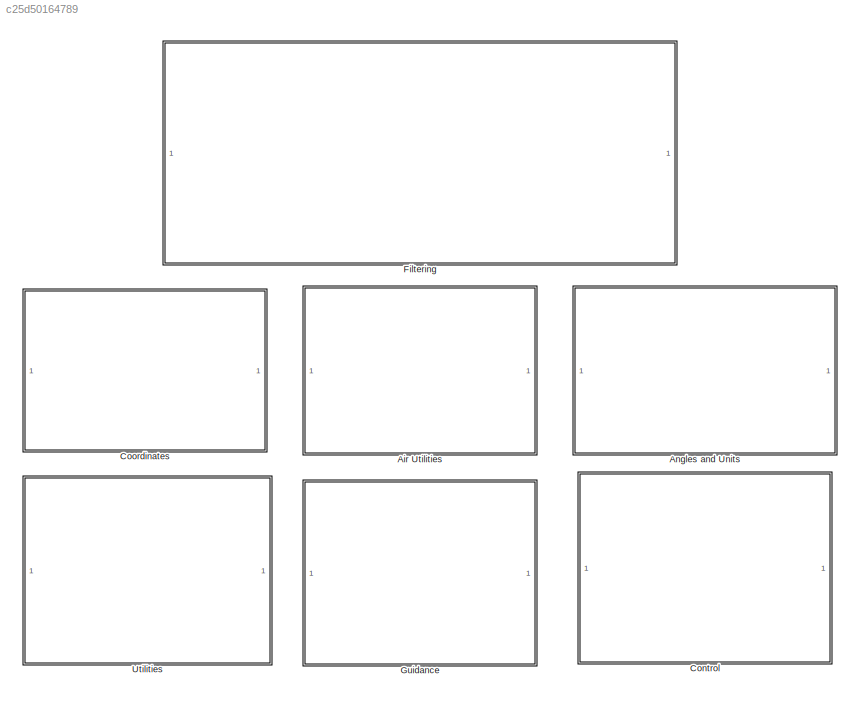
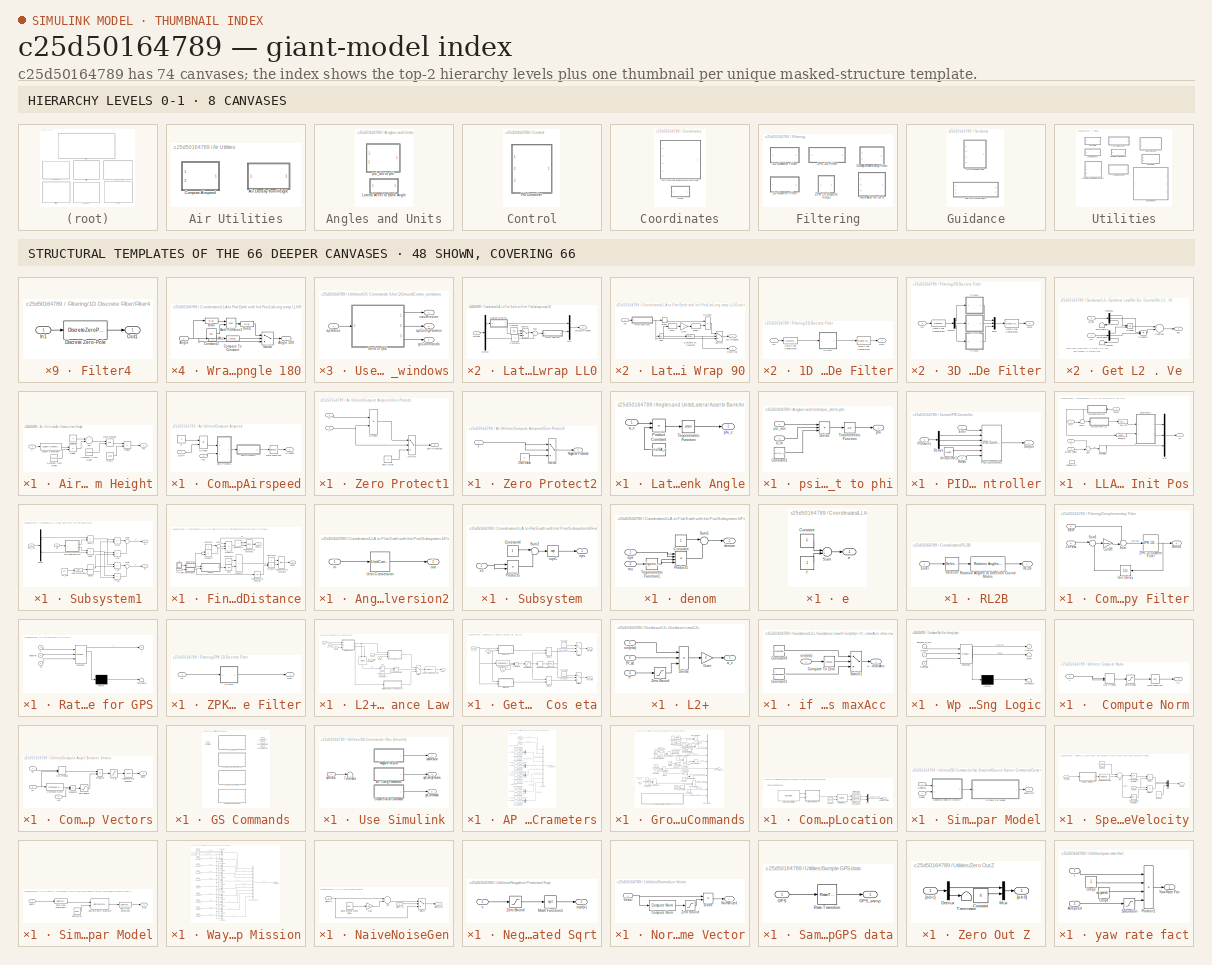
[diagram: thumbnail index - top-2 hierarchy levels (8 canvases) + 48 structural-template representatives of the remaining 66 canvases]
MODEL slx_c25d50164789
KIND library
CONFIG AbsTol = auto
CONFIG EnableMultiTasking = on
CONFIG FixedStep = auto
CONFIG MaxStep = auto
CONFIG MinStep = auto
CONFIG RelTol = 1e-3
CONFIG SampleTimeConstraint = Unconstrained
CONFIG Solver = ode45
CONFIG SolverName = ode45
CONFIG StartTime = 0.0
CONFIG StopTime = 10.0
BLOCK [SubSystem] Air Utilities
  Ports = []
  RequestExecContextInheritance = off
BLOCK [SubSystem] Air Utilities/Air Density from Height
  Ports = [1, 1]
  RequestExecContextInheritance = off
BLOCK [Sum] Air Utilities/Air Density from Height/Add
  InputSameDT = off
  Inputs = +-
  OutDataTypeStr = Inherit: Inherit via internal rule
  Ports = [2, 1]
  SaturateOnIntegerOverflow = off
BLOCK [Constant] Air Utilities/Air Density from Height/Constant
  AttributesFormatString = %<Value>
  OutDataTypeStr = single
BLOCK [Constant] Air Utilities/Air Density from Height/Constant 2 from Model
  AttributesFormatString = %<Value>
  OutDataTypeStr = single
  Value = 4.255876
BLOCK [Constant] Air Utilities/Air Density from Height/Constant from Model
  AttributesFormatString = %<Value>
  OutDataTypeStr = single
  Value = 145442
BLOCK [Product] Air Utilities/Air Density from Height/Divide
  InputSameDT = off
  Inputs = */
  OutDataTypeStr = Inherit: Inherit via internal rule
  Ports = [2, 1]
  RndMeth = Floor
  SampleTime = .01
  SaturateOnIntegerOverflow = off
BLOCK [Product] Air Utilities/Air Density from Height/Divide1
  InputSameDT = off
  OutDataTypeStr = Inherit: Inherit via internal rule
  Ports = [2, 1]
  RndMeth = Floor
  SaturateOnIntegerOverflow = off
BLOCK [Reference] Air Utilities/Air Density from Height/Length Conversion  REF=aerolibconvert2/Length Conversion
  Ports = [1, 1]
  SourceBlock = aerolibconvert2/Length Conversion
  SourceProductBaseCode = AE
  SourceProductName = Aerospace Blockset
  SourceType = Length Conversion
BLOCK [Math] Air Utilities/Air Density from Height/Math Function
  Operator = pow
  Ports = [2, 1]
BLOCK [Constant] Air Utilities/Air Density from Height/Rho_0
  AttributesFormatString = %<Value>
  Description = (Kg/m^3)
  OutDataTypeStr = single
  Value = 1.225
BLOCK [Inport] Air Utilities/Air Density from Height/h
  IconDisplay = Port number
  Unit = m
BLOCK [Outport] Air Utilities/Air Density from Height/rho 
  IconDisplay = Port number
  Unit = kg/m^3
BLOCK [SubSystem] Air Utilities/Compute Airspeed
  Ports = [2, 1]
  RequestExecContextInheritance = off
BLOCK [Outport] Air Utilities/Compute Airspeed/Airspeed 
  IconDisplay = Port number
  Unit = m/s
BLOCK [Product] Air Utilities/Compute Airspeed/Divide2
  InputSameDT = off
  OutDataTypeStr = Inherit: Inherit via internal rule
  Ports = [2, 1]
  RndMeth = Floor
  SampleTime = .01
  SaturateOnIntegerOverflow = off
BLOCK [Inport] Air Utilities/Compute Airspeed/Dyn P
  IconDisplay = Port number
  Unit = Pa
BLOCK [Sqrt] Air Utilities/Compute Airspeed/Math Function1
  AlgorithmType = Newton-Raphson
  Operator = signedSqrt
BLOCK [SubSystem] Air Utilities/Compute Airspeed/Zero Protect1
  Ports = [2, 1]
  RequestExecContextInheritance = off
BLOCK [Product] Air Utilities/Compute Airspeed/Zero Protect1/Divide2
  InputSameDT = off
  Inputs = */
  OutDataTypeStr = Inherit: Inherit via internal rule
  Ports = [2, 1]
  RndMeth = Floor
  SaturateOnIntegerOverflow = off
BLOCK [Switch] Air Utilities/Compute Airspeed/Zero Protect1/Switch
  Criteria = u2 ~= 0
  InputSameDT = off
  OutDataTypeStr = Inherit: Inherit via back propagation
  SaturateOnIntegerOverflow = off
  Threshold = 0.1
BLOCK [Outport] Air Utilities/Compute Airspeed/Zero Protect1/Zero Protected
  IconDisplay = Port number
BLOCK [Constant] Air Utilities/Compute Airspeed/Zero Protect1/Zero Value
  OutDataTypeStr = single
  Value = 0
BLOCK [Inport] Air Utilities/Compute Airspeed/Zero Protect1/x
  IconDisplay = Port number
BLOCK [Inport] Air Utilities/Compute Airspeed/Zero Protect1/÷
  IconDisplay = Port number
  Port = 2
BLOCK [SubSystem] Air Utilities/Compute Airspeed/Zero Protect2
  Ports = [1, 1]
  RequestExecContextInheritance = off
BLOCK [Outport] Air Utilities/Compute Airspeed/Zero Protect2/Negative Protected
  IconDisplay = Port number
BLOCK [Switch] Air Utilities/Compute Airspeed/Zero Protect2/Switch
  InputSameDT = off
  OutDataTypeStr = Inherit: Inherit via back propagation
  SaturateOnIntegerOverflow = off
BLOCK [Constant] Air Utilities/Compute Airspeed/Zero Protect2/Zero Value
  OutDataTypeStr = single
  Value = 0
BLOCK [Inport] Air Utilities/Compute Airspeed/Zero Protect2/x
  IconDisplay = Port number
BLOCK [Constant] Air Utilities/Compute Airspeed/a
  AttributesFormatString = %<Value>
  OutDataTypeStr = single
  Value = 2
BLOCK [Inport] Air Utilities/Compute Airspeed/rho
  IconDisplay = Port number
  Port = 2
  Unit = kg/m^3
BLOCK [SubSystem] Angles and Units
  Ports = []
  RequestExecContextInheritance = off
BLOCK [SubSystem] Angles and Units/Lateral Accel to Bank Angle
  Ports = [1, 1]
  RequestExecContextInheritance = off
BLOCK [Constant] Angles and Units/Lateral Accel to Bank Angle/Constant
  AttributesFormatString = %<Value>
  OutDataTypeStr = single
  Value = env.ISA_g
BLOCK [Product] Angles and Units/Lateral Accel to Bank Angle/Product
  InputSameDT = off
  Inputs = */
  OutDataTypeStr = Inherit: Inherit via internal rule
  Ports = [2, 1]
  SaturateOnIntegerOverflow = off
BLOCK [Trigonometry] Angles and Units/Lateral Accel to Bank Angle/Trigonometric Function
  Operator = atan
  Ports = [1, 1]
BLOCK [Inport] Angles and Units/Lateral Accel to Bank Angle/a_c
  IconDisplay = Port number
BLOCK [Outport] Angles and Units/Lateral Accel to Bank Angle/phi_c
  IconDisplay = Port number
BLOCK [SubSystem] Angles and Units/psi_dot to phi
  Ports = [2, 1]
  RequestExecContextInheritance = off
BLOCK [Constant] Angles and Units/psi_dot to phi/Constant1
  AttributesFormatString = %<Value>
  OutDataTypeStr = single
  Value = env.ISA_g
BLOCK [Product] Angles and Units/psi_dot to phi/Divide
  InputSameDT = off
  Inputs = **/
  OutDataTypeStr = Inherit: Inherit via internal rule
  Ports = [3, 1]
  RndMeth = Floor
  SaturateOnIntegerOverflow = off
BLOCK [Trigonometry] Angles and Units/psi_dot to phi/Trigonometric Function
  Operator = atan
  Ports = [1, 1]
BLOCK [Inport] Angles and Units/psi_dot to phi/U_m
  IconDisplay = Port number
  Port = 2
  Unit = m/s
BLOCK [Outport] Angles and Units/psi_dot to phi/phi
  IconDisplay = Port number
  Unit = rad
BLOCK [Inport] Angles and Units/psi_dot to phi/psi_dot
  IconDisplay = Port number
  Unit = rad/sec
BLOCK [SubSystem] Control
  Ports = []
  RequestExecContextInheritance = off
BLOCK [SubSystem] Control/PID Controller
  Ports = [3, 1]
  RequestExecContextInheritance = off
BLOCK [Demux] Control/PID Controller/Demux
  DisplayOption = bar
  Outputs = 3
  Ports = [1, 3]
BLOCK [Inport] Control/PID Controller/Error
  IconDisplay = Port number
BLOCK [Outport] Control/PID Controller/Output
  IconDisplay = Port number
BLOCK [Reference] Control/PID Controller/PID Controller  REF=simulink/Continuous/PID Controller
  Ports = [6, 1]
  SourceBlock = simulink/Continuous/PID Controller
  SourceProductBaseCode = SL
  SourceProductName = Simulink
  SourceType = PID 1dof
BLOCK [Inport] Control/PID Controller/PIDGains
  IconDisplay = Port number
  Port = 3
BLOCK [Inport] Control/PID Controller/Reset
  IconDisplay = Port number
  Port = 2
BLOCK [Constant] Control/PID Controller/delayTime1
  AttributesFormatString = %<Value>
  OutDataTypeStr = single
  Value = Ndelay
BLOCK [SubSystem] Coordinates
  Ports = []
  RequestExecContextInheritance = off
BLOCK [SubSystem] Coordinates/LLA to Flat Earth with Init Pos
  Ports = [4, 1]
  RequestExecContextInheritance = off
BLOCK [UnitConfiguration] Coordinates/LLA to Flat Earth with Init Pos/Disallow CGS
  AllowAllUnitSystems = off
  UnitSystemsStr = English,SI,SI (extended)
BLOCK [SubSystem] Coordinates/LLA to Flat Earth with Init Pos/LatLong wrap LL0
  AncestorBlock = aerolibtransform2sys/LatLong wrap
  Ports = [1, 1]
  RequestExecContextInheritance = off
BLOCK [Constant] Coordinates/LLA to Flat Earth with Init Pos/LatLong wrap LL0/Constant
  AttributesFormatString = %<Value>
  OutDataTypeStr = single
  Value = 180
BLOCK [Constant] Coordinates/LLA to Flat Earth with Init Pos/LatLong wrap LL0/Constant1
  AttributesFormatString = %<Value>
  OutDataTypeStr = single
  Value = 0
BLOCK [Demux] Coordinates/LLA to Flat Earth with Init Pos/LatLong wrap LL0/Demux
  DisplayOption = bar
  Outputs = 2
  Ports = [1, 2]
BLOCK [Inport] Coordinates/LLA to Flat Earth with Init Pos/LatLong wrap LL0/LatLong
  IconDisplay = Port number
BLOCK [Outport] Coordinates/LLA to Flat Earth with Init Pos/LatLong wrap LL0/LatLong wrapped
  IconDisplay = Port number
BLOCK [SubSystem] Coordinates/LLA to Flat Earth with Init Pos/LatLong wrap LL0/Latitude Wrap 90
  AncestorBlock = aerolibtransform2sys/Latitude Wrap 90
  Ports = [1, 2]
  RequestExecContextInheritance = off
BLOCK [Abs] Coordinates/LLA to Flat Earth with Init Pos/LatLong wrap LL0/Latitude Wrap 90/Abs1
  SaturateOnIntegerOverflow = off
BLOCK [Bias] Coordinates/LLA to Flat Earth with Init Pos/LatLong wrap LL0/Latitude Wrap 90/Bias
  Bias = -90
  SaturateOnIntegerOverflow = off
BLOCK [Bias] Coordinates/LLA to Flat Earth with Init Pos/LatLong wrap LL0/Latitude Wrap 90/Bias1
  Bias = +90
  SaturateOnIntegerOverflow = off
BLOCK [Reference] Coordinates/LLA to Flat Earth with Init Pos/LatLong wrap LL0/Latitude Wrap 90/Compare To Constant  REF=simulink/Logic and Bit
Operations/Compare
To Constant
  Ports = [1, 1]
  SourceBlock = simulink/Logic and Bit\nOperations/Compare\nTo Constant
  SourceProductBaseCode = SL
  SourceProductName = Simulink
  SourceType = Compare To Constant
BLOCK [Product] Coordinates/LLA to Flat Earth with Init Pos/LatLong wrap LL0/Latitude Wrap 90/Divide1
  InputSameDT = off
  Inputs = **
  OutDataTypeStr = Inherit: Inherit via internal rule
  Ports = [2, 1]
  RndMeth = Floor
  SaturateOnIntegerOverflow = off
BLOCK [Gain] Coordinates/LLA to Flat Earth with Init Pos/LatLong wrap LL0/Latitude Wrap 90/Gain
  AttributesFormatString = %<Gain>
  Gain = -1
  OutDataTypeStr = Inherit: Inherit via internal rule
  ParamDataTypeStr = Inherit: Inherit via internal rule
  SaturateOnIntegerOverflow = off
BLOCK [Inport] Coordinates/LLA to Flat Earth with Init Pos/LatLong wrap LL0/Latitude Wrap 90/Lat
  IconDisplay = Port number
BLOCK [Outport] Coordinates/LLA to Flat Earth with Init Pos/LatLong wrap LL0/Latitude Wrap 90/Lat wrapped
  IconDisplay = Port number
BLOCK [Signum] Coordinates/LLA to Flat Earth with Init Pos/LatLong wrap LL0/Latitude Wrap 90/Sign1
BLOCK [Switch] Coordinates/LLA to Flat Earth with Init Pos/LatLong wrap LL0/Latitude Wrap 90/Switch
  Criteria = u2 ~= 0
  InputSameDT = off
  SaturateOnIntegerOverflow = off
BLOCK [SubSystem] Coordinates/LLA to Flat Earth with Init Pos/LatLong wrap LL0/Latitude Wrap 90/Wrap Angle 180
  AncestorBlock = aerolibtransform2sys/Wrap Angle 180
  Ports = [1, 1]
  RequestExecContextInheritance = off
BLOCK [Abs] Coordinates/LLA to Flat Earth with Init Pos/LatLong wrap LL0/Latitude Wrap 90/Wrap Angle 180/Abs
  SaturateOnIntegerOverflow = off
BLOCK [Inport] Coordinates/LLA to Flat Earth with Init Pos/LatLong wrap LL0/Latitude Wrap 90/Wrap Angle 180/Angle
  IconDisplay = Port number
BLOCK [Outport] Coordinates/LLA to Flat Earth with Init Pos/LatLong wrap LL0/Latitude Wrap 90/Wrap Angle 180/Angle 180
  IconDisplay = Port number
BLOCK [Bias] Coordinates/LLA to Flat Earth with Init Pos/LatLong wrap LL0/Latitude Wrap 90/Wrap Angle 180/Bias
  Bias = 180
  SaturateOnIntegerOverflow = off
BLOCK [Bias] Coordinates/LLA to Flat Earth with Init Pos/LatLong wrap LL0/Latitude Wrap 90/Wrap Angle 180/Bias1
  Bias = -180
  SaturateOnIntegerOverflow = off
BLOCK [Reference] Coordinates/LLA to Flat Earth with Init Pos/LatLong wrap LL0/Latitude Wrap 90/Wrap Angle 180/Compare To Constant  REF=simulink/Logic and Bit
Operations/Compare
To Constant
  Ports = [1, 1]
  SourceBlock = simulink/Logic and Bit\nOperations/Compare\nTo Constant
  SourceProductBaseCode = SL
  SourceProductName = Simulink
  SourceType = Compare To Constant
BLOCK [Constant] Coordinates/LLA to Flat Earth with Init Pos/LatLong wrap LL0/Latitude Wrap 90/Wrap Angle 180/Constant2
  AttributesFormatString = %<Value>
  OutDataTypeStr = single
  Value = 360
BLOCK [Math] Coordinates/LLA to Flat Earth with Init Pos/LatLong wrap LL0/Latitude Wrap 90/Wrap Angle 180/Math Function1
  Operator = mod
  Ports = [2, 1]
BLOCK [Switch] Coordinates/LLA to Flat Earth with Init Pos/LatLong wrap LL0/Latitude Wrap 90/Wrap Angle 180/Switch
  Criteria = u2 ~= 0
  InputSameDT = off
  SaturateOnIntegerOverflow = off
  Threshold = 180
BLOCK [Outport] Coordinates/LLA to Flat Earth with Init Pos/LatLong wrap LL0/Latitude Wrap 90/Wrap flag
  IconDisplay = Port number
  Port = 2
BLOCK [Mux] Coordinates/LLA to Flat Earth with Init Pos/LatLong wrap LL0/Mux
  DisplayOption = bar
  Inputs = 2
  Ports = [2, 1]
BLOCK [Sum] Coordinates/LLA to Flat Earth with Init Pos/LatLong wrap LL0/Sum
  IconShape = round
  InputSameDT = off
  Inputs = |++
  OutDataTypeStr = Inherit: Inherit via internal rule
  Ports = [2, 1]
  SaturateOnIntegerOverflow = off
BLOCK [Switch] Coordinates/LLA to Flat Earth with Init Pos/LatLong wrap LL0/Switch1
  Criteria = u2 ~= 0
  InputSameDT = off
  SaturateOnIntegerOverflow = off
BLOCK [SubSystem] Coordinates/LLA to Flat Earth with Init Pos/LatLong wrap LL0/Wrap Angle 180
  AncestorBlock = aerolibtransform2sys/Wrap Angle 180
  Ports = [1, 1]
  RequestExecContextInheritance = off
BLOCK [Abs] Coordinates/LLA to Flat Earth with Init Pos/LatLong wrap LL0/Wrap Angle 180/Abs
  SaturateOnIntegerOverflow = off
BLOCK [Inport] Coordinates/LLA to Flat Earth with Init Pos/LatLong wrap LL0/Wrap Angle 180/Angle
  IconDisplay = Port number
BLOCK [Outport] Coordinates/LLA to Flat Earth with Init Pos/LatLong wrap LL0/Wrap Angle 180/Angle 180
  IconDisplay = Port number
BLOCK [Bias] Coordinates/LLA to Flat Earth with Init Pos/LatLong wrap LL0/Wrap Angle 180/Bias
  Bias = 180
  SaturateOnIntegerOverflow = off
BLOCK [Bias] Coordinates/LLA to Flat Earth with Init Pos/LatLong wrap LL0/Wrap Angle 180/Bias1
  Bias = -180
  SaturateOnIntegerOverflow = off
BLOCK [Reference] Coordinates/LLA to Flat Earth with Init Pos/LatLong wrap LL0/Wrap Angle 180/Compare To Constant  REF=simulink/Logic and Bit
Operations/Compare
To Constant
  Ports = [1, 1]
  SourceBlock = simulink/Logic and Bit\nOperations/Compare\nTo Constant
  SourceProductBaseCode = SL
  SourceProductName = Simulink
  SourceType = Compare To Constant
BLOCK [Constant] Coordinates/LLA to Flat Earth with Init Pos/LatLong wrap LL0/Wrap Angle 180/Constant2
  AttributesFormatString = %<Value>
  OutDataTypeStr = single
  Value = 360
BLOCK [Math] Coordinates/LLA to Flat Earth with Init Pos/LatLong wrap LL0/Wrap Angle 180/Math Function1
  Operator = mod
  Ports = [2, 1]
BLOCK [Switch] Coordinates/LLA to Flat Earth with Init Pos/LatLong wrap LL0/Wrap Angle 180/Switch
  Criteria = u2 ~= 0
  InputSameDT = off
  SaturateOnIntegerOverflow = off
  Threshold = 180
BLOCK [SubSystem] Coordinates/LLA to Flat Earth with Init Pos/LatLong wrap LL1
  AncestorBlock = aerolibtransform2sys/LatLong wrap
  Ports = [1, 1]
  RequestExecContextInheritance = off
BLOCK [Constant] Coordinates/LLA to Flat Earth with Init Pos/LatLong wrap LL1/Constant
  AttributesFormatString = %<Value>
  OutDataTypeStr = single
  Value = 180
BLOCK [Constant] Coordinates/LLA to Flat Earth with Init Pos/LatLong wrap LL1/Constant1
  AttributesFormatString = %<Value>
  OutDataTypeStr = single
  Value = 0
BLOCK [Demux] Coordinates/LLA to Flat Earth with Init Pos/LatLong wrap LL1/Demux
  DisplayOption = bar
  Outputs = 2
  Ports = [1, 2]
BLOCK [Inport] Coordinates/LLA to Flat Earth with Init Pos/LatLong wrap LL1/LatLong
  IconDisplay = Port number
BLOCK [Outport] Coordinates/LLA to Flat Earth with Init Pos/LatLong wrap LL1/LatLong wrapped
  IconDisplay = Port number
BLOCK [SubSystem] Coordinates/LLA to Flat Earth with Init Pos/LatLong wrap LL1/Latitude Wrap 90
  AncestorBlock = aerolibtransform2sys/Latitude Wrap 90
  Ports = [1, 2]
  RequestExecContextInheritance = off
BLOCK [Abs] Coordinates/LLA to Flat Earth with Init Pos/LatLong wrap LL1/Latitude Wrap 90/Abs1
  SaturateOnIntegerOverflow = off
BLOCK [Bias] Coordinates/LLA to Flat Earth with Init Pos/LatLong wrap LL1/Latitude Wrap 90/Bias
  Bias = -90
  SaturateOnIntegerOverflow = off
BLOCK [Bias] Coordinates/LLA to Flat Earth with Init Pos/LatLong wrap LL1/Latitude Wrap 90/Bias1
  Bias = +90
  SaturateOnIntegerOverflow = off
BLOCK [Reference] Coordinates/LLA to Flat Earth with Init Pos/LatLong wrap LL1/Latitude Wrap 90/Compare To Constant  REF=simulink/Logic and Bit
Operations/Compare
To Constant
  Ports = [1, 1]
  SourceBlock = simulink/Logic and Bit\nOperations/Compare\nTo Constant
  SourceProductBaseCode = SL
  SourceProductName = Simulink
  SourceType = Compare To Constant
BLOCK [Product] Coordinates/LLA to Flat Earth with Init Pos/LatLong wrap LL1/Latitude Wrap 90/Divide1
  InputSameDT = off
  Inputs = **
  OutDataTypeStr = Inherit: Inherit via internal rule
  Ports = [2, 1]
  RndMeth = Floor
  SaturateOnIntegerOverflow = off
BLOCK [Gain] Coordinates/LLA to Flat Earth with Init Pos/LatLong wrap LL1/Latitude Wrap 90/Gain
  AttributesFormatString = %<Gain>
  Gain = -1
  OutDataTypeStr = Inherit: Inherit via internal rule
  ParamDataTypeStr = Inherit: Inherit via internal rule
  SaturateOnIntegerOverflow = off
BLOCK [Inport] Coordinates/LLA to Flat Earth with Init Pos/LatLong wrap LL1/Latitude Wrap 90/Lat
  IconDisplay = Port number
BLOCK [Outport] Coordinates/LLA to Flat Earth with Init Pos/LatLong wrap LL1/Latitude Wrap 90/Lat wrapped
  IconDisplay = Port number
BLOCK [Signum] Coordinates/LLA to Flat Earth with Init Pos/LatLong wrap LL1/Latitude Wrap 90/Sign1
BLOCK [Switch] Coordinates/LLA to Flat Earth with Init Pos/LatLong wrap LL1/Latitude Wrap 90/Switch
  Criteria = u2 ~= 0
  InputSameDT = off
  SaturateOnIntegerOverflow = off
BLOCK [SubSystem] Coordinates/LLA to Flat Earth with Init Pos/LatLong wrap LL1/Latitude Wrap 90/Wrap Angle 180
  AncestorBlock = aerolibtransform2sys/Wrap Angle 180
  Ports = [1, 1]
  RequestExecContextInheritance = off
BLOCK [Abs] Coordinates/LLA to Flat Earth with Init Pos/LatLong wrap LL1/Latitude Wrap 90/Wrap Angle 180/Abs
  SaturateOnIntegerOverflow = off
BLOCK [Inport] Coordinates/LLA to Flat Earth with Init Pos/LatLong wrap LL1/Latitude Wrap 90/Wrap Angle 180/Angle
  IconDisplay = Port number
BLOCK [Outport] Coordinates/LLA to Flat Earth with Init Pos/LatLong wrap LL1/Latitude Wrap 90/Wrap Angle 180/Angle 180
  IconDisplay = Port number
BLOCK [Bias] Coordinates/LLA to Flat Earth with Init Pos/LatLong wrap LL1/Latitude Wrap 90/Wrap Angle 180/Bias
  Bias = 180
  SaturateOnIntegerOverflow = off
BLOCK [Bias] Coordinates/LLA to Flat Earth with Init Pos/LatLong wrap LL1/Latitude Wrap 90/Wrap Angle 180/Bias1
  Bias = -180
  SaturateOnIntegerOverflow = off
BLOCK [Reference] Coordinates/LLA to Flat Earth with Init Pos/LatLong wrap LL1/Latitude Wrap 90/Wrap Angle 180/Compare To Constant  REF=simulink/Logic and Bit
Operations/Compare
To Constant
  Ports = [1, 1]
  SourceBlock = simulink/Logic and Bit\nOperations/Compare\nTo Constant
  SourceProductBaseCode = SL
  SourceProductName = Simulink
  SourceType = Compare To Constant
BLOCK [Constant] Coordinates/LLA to Flat Earth with Init Pos/LatLong wrap LL1/Latitude Wrap 90/Wrap Angle 180/Constant2
  AttributesFormatString = %<Value>
  OutDataTypeStr = single
  Value = 360
BLOCK [Math] Coordinates/LLA to Flat Earth with Init Pos/LatLong wrap LL1/Latitude Wrap 90/Wrap Angle 180/Math Function1
  Operator = mod
  Ports = [2, 1]
BLOCK [Switch] Coordinates/LLA to Flat Earth with Init Pos/LatLong wrap LL1/Latitude Wrap 90/Wrap Angle 180/Switch
  Criteria = u2 ~= 0
  InputSameDT = off
  SaturateOnIntegerOverflow = off
  Threshold = 180
BLOCK [Outport] Coordinates/LLA to Flat Earth with Init Pos/LatLong wrap LL1/Latitude Wrap 90/Wrap flag
  IconDisplay = Port number
  Port = 2
BLOCK [Mux] Coordinates/LLA to Flat Earth with Init Pos/LatLong wrap LL1/Mux
  DisplayOption = bar
  Inputs = 2
  Ports = [2, 1]
BLOCK [Sum] Coordinates/LLA to Flat Earth with Init Pos/LatLong wrap LL1/Sum
  IconShape = round
  InputSameDT = off
  Inputs = |++
  OutDataTypeStr = Inherit: Inherit via internal rule
  Ports = [2, 1]
  SaturateOnIntegerOverflow = off
BLOCK [Switch] Coordinates/LLA to Flat Earth with Init Pos/LatLong wrap LL1/Switch1
  Criteria = u2 ~= 0
  InputSameDT = off
  SaturateOnIntegerOverflow = off
BLOCK [SubSystem] Coordinates/LLA to Flat Earth with Init Pos/LatLong wrap LL1/Wrap Angle 180
  AncestorBlock = aerolibtransform2sys/Wrap Angle 180
  Ports = [1, 1]
  RequestExecContextInheritance = off
BLOCK [Abs] Coordinates/LLA to Flat Earth with Init Pos/LatLong wrap LL1/Wrap Angle 180/Abs
  SaturateOnIntegerOverflow = off
BLOCK [Inport] Coordinates/LLA to Flat Earth with Init Pos/LatLong wrap LL1/Wrap Angle 180/Angle
  IconDisplay = Port number
BLOCK [Outport] Coordinates/LLA to Flat Earth with Init Pos/LatLong wrap LL1/Wrap Angle 180/Angle 180
  IconDisplay = Port number
BLOCK [Bias] Coordinates/LLA to Flat Earth with Init Pos/LatLong wrap LL1/Wrap Angle 180/Bias
  Bias = 180
  SaturateOnIntegerOverflow = off
BLOCK [Bias] Coordinates/LLA to Flat Earth with Init Pos/LatLong wrap LL1/Wrap Angle 180/Bias1
  Bias = -180
  SaturateOnIntegerOverflow = off
BLOCK [Reference] Coordinates/LLA to Flat Earth with Init Pos/LatLong wrap LL1/Wrap Angle 180/Compare To Constant  REF=simulink/Logic and Bit
Operations/Compare
To Constant
  Ports = [1, 1]
  SourceBlock = simulink/Logic and Bit\nOperations/Compare\nTo Constant
  SourceProductBaseCode = SL
  SourceProductName = Simulink
  SourceType = Compare To Constant
BLOCK [Constant] Coordinates/LLA to Flat Earth with Init Pos/LatLong wrap LL1/Wrap Angle 180/Constant2
  AttributesFormatString = %<Value>
  OutDataTypeStr = single
  Value = 360
BLOCK [Math] Coordinates/LLA to Flat Earth with Init Pos/LatLong wrap LL1/Wrap Angle 180/Math Function1
  Operator = mod
  Ports = [2, 1]
BLOCK [Switch] Coordinates/LLA to Flat Earth with Init Pos/LatLong wrap LL1/Wrap Angle 180/Switch
  Criteria = u2 ~= 0
  InputSameDT = off
  SaturateOnIntegerOverflow = off
  Threshold = 180
BLOCK [Mux] Coordinates/LLA to Flat Earth with Init Pos/Mux
  DisplayOption = bar
  Inputs = 3
  Ports = [3, 1]
BLOCK [SubSystem] Coordinates/LLA to Flat Earth with Init Pos/Subsystem1
  Ports = [2, 2]
  RequestExecContextInheritance = off
BLOCK [Reference] Coordinates/LLA to Flat Earth with Init Pos/Subsystem1/Angle Conversion2  REF=aerolibtransform2/LLA to Flat Earth/Subsystem/Angle Conversion2
  Ports = [1, 1]
  SourceBlock = aerolibtransform2/LLA to Flat Earth/Subsystem/Angle Conversion2
  SourceProductBaseCode = AE
  SourceProductName = Aerospace Blockset
  SourceType = SubSystem
BLOCK [Demux] Coordinates/LLA to Flat Earth with Init Pos/Subsystem1/Demux
  DisplayOption = bar
  Outputs = 2
  Ports = [1, 2]
BLOCK [SubSystem] Coordinates/LLA to Flat Earth with Init Pos/Subsystem1/Find Radial Distance
  AncestorBlock = aerolibtransform2/LLA to Flat Earth/Subsystem/Find Radian//Distance
  Ports = [1, 2]
  RequestExecContextInheritance = off
BLOCK [SubSystem] Coordinates/LLA to Flat Earth with Init Pos/Subsystem1/Find Radial Distance/Angle Conversion2
  Ports = [1, 1]
  RequestExecContextInheritance = off
BLOCK [UnitConversion] Coordinates/LLA to Flat Earth with Init Pos/Subsystem1/Find Radial Distance/Angle Conversion2/Unit Conversion
BLOCK [Inport] Coordinates/LLA to Flat Earth with Init Pos/Subsystem1/Find Radial Distance/Angle Conversion2/in
  IconDisplay = Port number
  Unit = deg
BLOCK [Outport] Coordinates/LLA to Flat Earth with Init Pos/Subsystem1/Find Radial Distance/Angle Conversion2/out
  IconDisplay = Port number
  Unit = rad
BLOCK [Constant] Coordinates/LLA to Flat Earth with Init Pos/Subsystem1/Find Radial Distance/Constant
  AttributesFormatString = %<Value>
  OutDataTypeStr = single
BLOCK [Constant] Coordinates/LLA to Flat Earth with Init Pos/Subsystem1/Find Radial Distance/Constant1
  AttributesFormatString = %<Value>
  OutDataTypeStr = single
  Value = R
BLOCK [Constant] Coordinates/LLA to Flat Earth with Init Pos/Subsystem1/Find Radial Distance/Constant2
  AttributesFormatString = %<Value>
  OutDataTypeStr = single
BLOCK [Constant] Coordinates/LLA to Flat Earth with Init Pos/Subsystem1/Find Radial Distance/Constant3
  AttributesFormatString = %<Value>
  OutDataTypeStr = single
BLOCK [Product] Coordinates/LLA to Flat Earth with Init Pos/Subsystem1/Find Radial Distance/Product1
  InputSameDT = off
  Inputs = */
  OutDataTypeStr = Inherit: Inherit via internal rule
  Ports = [2, 1]
  SaturateOnIntegerOverflow = off
BLOCK [Product] Coordinates/LLA to Flat Earth with Init Pos/Subsystem1/Find Radial Distance/Product2
  InputSameDT = off
  OutDataTypeStr = Inherit: Inherit via internal rule
  Ports = [2, 1]
  SaturateOnIntegerOverflow = off
BLOCK [Product] Coordinates/LLA to Flat Earth with Init Pos/Subsystem1/Find Radial Distance/Product3
  InputSameDT = off
  Inputs = **/
  OutDataTypeStr = Inherit: Inherit via internal rule
  Ports = [3, 1]
  SaturateOnIntegerOverflow = off
BLOCK [Product] Coordinates/LLA to Flat Earth with Init Pos/Subsystem1/Find Radial Distance/Product4
  InputSameDT = off
  OutDataTypeStr = Inherit: Inherit via internal rule
  Ports = [2, 1]
  SaturateOnIntegerOverflow = off
BLOCK [SubSystem] Coordinates/LLA to Flat Earth with Init Pos/Subsystem1/Find Radial Distance/Subsystem
  Ports = [1, 1]
  RequestExecContextInheritance = off
BLOCK [Constant] Coordinates/LLA to Flat Earth with Init Pos/Subsystem1/Find Radial Distance/Subsystem/Constant4
  AttributesFormatString = %<Value>
  OutDataTypeStr = single
BLOCK [Product] Coordinates/LLA to Flat Earth with Init Pos/Subsystem1/Find Radial Distance/Subsystem/Product5
  InputSameDT = off
  OutDataTypeStr = Inherit: Inherit via internal rule
  Ports = [2, 1]
  SaturateOnIntegerOverflow = off
BLOCK [Sum] Coordinates/LLA to Flat Earth with Init Pos/Subsystem1/Find Radial Distance/Subsystem/Sum2
  IconShape = round
  InputSameDT = off
  Inputs = |+-
  OutDataTypeStr = Inherit: Inherit via internal rule
  Ports = [2, 1]
  SaturateOnIntegerOverflow = off
BLOCK [Inport] Coordinates/LLA to Flat Earth with Init Pos/Subsystem1/Find Radial Distance/Subsystem/e1
  IconDisplay = Port number
BLOCK [Outport] Coordinates/LLA to Flat Earth with Init Pos/Subsystem1/Find Radial Distance/Subsystem/eps
  IconDisplay = Port number
BLOCK [Sqrt] Coordinates/LLA to Flat Earth with Init Pos/Subsystem1/Find Radial Distance/Subsystem/sqrt1
  AlgorithmType = Newton-Raphson
BLOCK [Sum] Coordinates/LLA to Flat Earth with Init Pos/Subsystem1/Find Radial Distance/Sum1
  IconShape = round
  InputSameDT = off
  Inputs = |+-
  OutDataTypeStr = Inherit: Inherit via internal rule
  Ports = [2, 1]
  SaturateOnIntegerOverflow = off
BLOCK [Trigonometry] Coordinates/LLA to Flat Earth with Init Pos/Subsystem1/Find Radial Distance/Trigonometric Function
  Operator = cos
  Ports = [1, 1]
BLOCK [Trigonometry] Coordinates/LLA to Flat Earth with Init Pos/Subsystem1/Find Radial Distance/Trigonometric Function1
  Operator = atan2
  Ports = [2, 1]
BLOCK [Trigonometry] Coordinates/LLA to Flat Earth with Init Pos/Subsystem1/Find Radial Distance/Trigonometric Function2
  Operator = atan2
  Ports = [2, 1]
BLOCK [Outport] Coordinates/LLA to Flat Earth with Init Pos/Subsystem1/Find Radial Distance/dEast
  IconDisplay = Port number
  Port = 2
BLOCK [Outport] Coordinates/LLA to Flat Earth with Init Pos/Subsystem1/Find Radial Distance/dNorth
  IconDisplay = Port number
BLOCK [SubSystem] Coordinates/LLA to Flat Earth with Init Pos/Subsystem1/Find Radial Distance/denom
  Ports = [2, 1]
  RequestExecContextInheritance = off
BLOCK [Constant] Coordinates/LLA to Flat Earth with Init Pos/Subsystem1/Find Radial Distance/denom/Constant
  AttributesFormatString = %<Value>
  OutDataTypeStr = single
BLOCK [Product] Coordinates/LLA to Flat Earth with Init Pos/Subsystem1/Find Radial Distance/denom/Product1
  InputSameDT = off
  Inputs = 4
  OutDataTypeStr = Inherit: Inherit via internal rule
  Ports = [4, 1]
  SaturateOnIntegerOverflow = off
BLOCK [Sum] Coordinates/LLA to Flat Earth with Init Pos/Subsystem1/Find Radial Distance/denom/Sum1
  IconShape = round
  InputSameDT = off
  Inputs = |+-
  OutDataTypeStr = Inherit: Inherit via internal rule
  Ports = [2, 1]
  SaturateOnIntegerOverflow = off
BLOCK [Trigonometry] Coordinates/LLA to Flat Earth with Init Pos/Subsystem1/Find Radial Distance/denom/Trigonometric Function1
  Ports = [1, 1]
BLOCK [Outport] Coordinates/LLA to Flat Earth with Init Pos/Subsystem1/Find Radial Distance/denom/denom
  IconDisplay = Port number
BLOCK [Inport] Coordinates/LLA to Flat Earth with Init Pos/Subsystem1/Find Radial Distance/denom/eps
  IconDisplay = Port number
BLOCK [Inport] Coordinates/LLA to Flat Earth with Init Pos/Subsystem1/Find Radial Distance/denom/mu
  IconDisplay = Port number
  Port = 2
BLOCK [SubSystem] Coordinates/LLA to Flat Earth with Init Pos/Subsystem1/Find Radial Distance/e
  Ports = [0, 1]
  RequestExecContextInheritance = off
BLOCK [Constant] Coordinates/LLA to Flat Earth with Init Pos/Subsystem1/Find Radial Distance/e/Constant
  AttributesFormatString = %<Value>
  OutDataTypeStr = single
  Value = F
BLOCK [Sum] Coordinates/LLA to Flat Earth with Init Pos/Subsystem1/Find Radial Distance/e/Sum
  IconShape = round
  InputSameDT = off
  Inputs = -+
  OutDataTypeStr = Inherit: Inherit via internal rule
  Ports = [2, 1]
  SaturateOnIntegerOverflow = off
BLOCK [Outport] Coordinates/LLA to Flat Earth with Init Pos/Subsystem1/Find Radial Distance/e/e
  IconDisplay = Port number
BLOCK [Constant] Coordinates/LLA to Flat Earth with Init Pos/Subsystem1/Find Radial Distance/e/f
  AttributesFormatString = %<Value>
  OutDataTypeStr = single
BLOCK [Inport] Coordinates/LLA to Flat Earth with Init Pos/Subsystem1/Find Radial Distance/mu
  IconDisplay = Port number
BLOCK [Sqrt] Coordinates/LLA to Flat Earth with Init Pos/Subsystem1/Find Radial Distance/sqrt
  AlgorithmType = Newton-Raphson
BLOCK [Outport] Coordinates/LLA to Flat Earth with Init Pos/Subsystem1/Px
  IconDisplay = Port number
BLOCK [Outport] Coordinates/LLA to Flat Earth with Init Pos/Subsystem1/Py
  IconDisplay = Port number
  Port = 2
BLOCK [Trigonometry] Coordinates/LLA to Flat Earth with Init Pos/Subsystem1/SinCos
  Operator = sincos
  Ports = [1, 2]
BLOCK [Sum] Coordinates/LLA to Flat Earth with Init Pos/Subsystem1/Sum2
  IconShape = round
  InputSameDT = off
  Inputs = |++
  OutDataTypeStr = Inherit: Inherit via internal rule
  Ports = [2, 1]
  SaturateOnIntegerOverflow = off
BLOCK [Sum] Coordinates/LLA to Flat Earth with Init Pos/Subsystem1/Sum3
  IconShape = round
  InputSameDT = off
  Inputs = |-+
  OutDataTypeStr = Inherit: Inherit via internal rule
  Ports = [2, 1]
  SaturateOnIntegerOverflow = off
BLOCK [Product] Coordinates/LLA to Flat Earth with Init Pos/Subsystem1/dEast
  InputSameDT = off
  Inputs = /*
  OutDataTypeStr = Inherit: Inherit via internal rule
  Ports = [2, 1]
  SaturateOnIntegerOverflow = off
BLOCK [Product] Coordinates/LLA to Flat Earth with Init Pos/Subsystem1/dNorth
  InputSameDT = off
  Inputs = */
  OutDataTypeStr = Inherit: Inherit via internal rule
  Ports = [2, 1]
  SaturateOnIntegerOverflow = off
BLOCK [Inport] Coordinates/LLA to Flat Earth with Init Pos/Subsystem1/mu
  IconDisplay = Port number
  Port = 2
BLOCK [Inport] Coordinates/LLA to Flat Earth with Init Pos/Subsystem1/pos_rad
  IconDisplay = Port number
BLOCK [Constant] Coordinates/LLA to Flat Earth with Init Pos/Subsystem1/ref_pos
  AttributesFormatString = %<Value>
  OutDataTypeStr = single
  Value = psi
BLOCK [Product] Coordinates/LLA to Flat Earth with Init Pos/Subsystem1/x*cos
  InputSameDT = off
  OutDataTypeStr = Inherit: Inherit via internal rule
  Ports = [2, 1]
  SaturateOnIntegerOverflow = off
BLOCK [Product] Coordinates/LLA to Flat Earth with Init Pos/Subsystem1/x*sin
  InputSameDT = off
  OutDataTypeStr = Inherit: Inherit via internal rule
  Ports = [2, 1]
  SaturateOnIntegerOverflow = off
BLOCK [Product] Coordinates/LLA to Flat Earth with Init Pos/Subsystem1/y*cos
  InputSameDT = off
  OutDataTypeStr = Inherit: Inherit via internal rule
  Ports = [2, 1]
  SaturateOnIntegerOverflow = off
BLOCK [Product] Coordinates/LLA to Flat Earth with Init Pos/Subsystem1/y*sin
  InputSameDT = off
  OutDataTypeStr = Inherit: Inherit via internal rule
  Ports = [2, 1]
  SaturateOnIntegerOverflow = off
BLOCK [Sum] Coordinates/LLA to Flat Earth with Init Pos/Sum
  IconShape = round
  InputSameDT = off
  Inputs = ++|
  OutDataTypeStr = Inherit: Inherit via internal rule
  Ports = [2, 1]
  SaturateOnIntegerOverflow = off
BLOCK [Sum] Coordinates/LLA to Flat Earth with Init Pos/Sum1
  IconShape = round
  InputSameDT = off
  Inputs = -+|
  OutDataTypeStr = Inherit: Inherit via internal rule
  Ports = [2, 1]
  SaturateOnIntegerOverflow = off
BLOCK [Outport] Coordinates/LLA to Flat Earth with Init Pos/Xe
  IconDisplay = Port number
  Unit = m
BLOCK [UnaryMinus] Coordinates/LLA to Flat Earth with Init Pos/Ze2height
BLOCK [Inport] Coordinates/LLA to Flat Earth with Init Pos/ground height
  IconDisplay = Port number
  Port = 3
  Unit = m
BLOCK [Inport] Coordinates/LLA to Flat Earth with Init Pos/h
  IconDisplay = Port number
  Port = 2
  Unit = m
BLOCK [Inport] Coordinates/LLA to Flat Earth with Init Pos/initPos
  IconDisplay = Port number
  Port = 4
  Unit = deg
BLOCK [Selector] Coordinates/LLA to Flat Earth with Init Pos/initial_latg
  AttributesFormatString = %<Indices>
  IndexOptions = Index vector (dialog)
  Indices = [1]
  InputPortWidth = 2
  OutputSizes = 1
  Ports = [1, 1]
BLOCK [Inport] Coordinates/LLA to Flat Earth with Init Pos/mu l
  IconDisplay = Port number
  Unit = deg
BLOCK [Reference] Coordinates/LLA to Flat Earth with Init Pos/pos_rad  REF=aerolibtransform2/LLA to Flat Earth/pos_rad
  Ports = [1, 1]
  SourceBlock = aerolibtransform2/LLA to Flat Earth/pos_rad
  SourceProductBaseCode = AE
  SourceProductName = Aerospace Blockset
  SourceType = SubSystem
BLOCK [SubSystem] Coordinates/RL2B
  Ports = [1, 1]
  RequestExecContextInheritance = off
BLOCK [Inport] Coordinates/RL2B/Euler
  IconDisplay = Port number
BLOCK [Outport] Coordinates/RL2B/RL2B
  IconDisplay = Port number
BLOCK [Reference] Coordinates/RL2B/Rotation Angles to Direction Cosine Matrix  REF=sharedtransform/Rotation Angles to
Direction Cosine Matrix
  AttributesFormatString = Rotation Order: %<rotationOrder>
  Ports = [1, 1]
  SourceBlock = sharedtransform/Rotation Angles to\nDirection Cosine Matrix
  SourceProductBaseCode = AE
  SourceProductName = Aerospace Blockset
  SourceType = Ang2DCM
BLOCK [Selector] Coordinates/RL2B/Selector
  IndexOptions = Index vector (dialog)
  Indices = [3 2 1]
  InputPortWidth = 3
  OutputSizes = 1
  Ports = [1, 1]
BLOCK [SubSystem] Filtering
  Ports = []
  RequestExecContextInheritance = off
BLOCK [SubSystem] Filtering/1D Discrete Filter
  AttributesFormatString = Fc = 40
  Ports = [1, 1]
  RTWFcnName = TustinFilter3D
  RTWFcnNameOpts = User specified
  RTWFileNameOpts = Use function name
  RTWSystemCode = Reusable function
  RequestExecContextInheritance = off
BLOCK [DataTypeConversion] Filtering/1D Discrete Filter/Data Type Conversion1
  OutDataTypeStr = single
  RndMeth = Floor
  SaturateOnIntegerOverflow = off
BLOCK [DataTypeConversion] Filtering/1D Discrete Filter/Data Type Conversion2
  OutDataTypeStr = double
  RndMeth = Floor
  SaturateOnIntegerOverflow = off
BLOCK [SubSystem] Filtering/1D Discrete Filter/Filter4
  Ports = [1, 1]
  RequestExecContextInheritance = off
BLOCK [DiscreteZeroPole] Filtering/1D Discrete Filter/Filter4/Discrete Zero-Pole
  Gain = g_d
  Poles = p_d
  SampleTime = -1
  Zeros = z_d
BLOCK [Inport] Filtering/1D Discrete Filter/Filter4/In1
  IconDisplay = Port number
BLOCK [Outport] Filtering/1D Discrete Filter/Filter4/Out1
  IconDisplay = Port number
BLOCK [Inport] Filtering/1D Discrete Filter/In1
  IconDisplay = Port number
BLOCK [Outport] Filtering/1D Discrete Filter/Out1
  IconDisplay = Port number
BLOCK [SubSystem] Filtering/3D Discrete Filter
  AttributesFormatString = Fc = 40
  Ports = [1, 1]
  RTWFcnName = TustinFilter3D
  RTWFcnNameOpts = User specified
  RTWFileNameOpts = Use function name
  RTWSystemCode = Reusable function
  RequestExecContextInheritance = off
BLOCK [DataTypeConversion] Filtering/3D Discrete Filter/Data Type Conversion1
  OutDataTypeStr = single
  RndMeth = Floor
  SaturateOnIntegerOverflow = off
BLOCK [DataTypeConversion] Filtering/3D Discrete Filter/Data Type Conversion2
  OutDataTypeStr = double
  RndMeth = Floor
  SaturateOnIntegerOverflow = off
BLOCK [Demux] Filtering/3D Discrete Filter/Demux
  DisplayOption = bar
  Outputs = 3
  Ports = [1, 3]
BLOCK [SubSystem] Filtering/3D Discrete Filter/Filter1
  Ports = [1, 1]
  RequestExecContextInheritance = off
BLOCK [DiscreteZeroPole] Filtering/3D Discrete Filter/Filter1/Discrete Zero-Pole
  Gain = g_d
  Poles = p_d
  SampleTime = -1
  Zeros = z_d
BLOCK [Inport] Filtering/3D Discrete Filter/Filter1/In1
  IconDisplay = Port number
BLOCK [Outport] Filtering/3D Discrete Filter/Filter1/Out1
  IconDisplay = Port number
BLOCK [SubSystem] Filtering/3D Discrete Filter/Filter2
  Ports = [1, 1]
  RequestExecContextInheritance = off
BLOCK [DiscreteZeroPole] Filtering/3D Discrete Filter/Filter2/Discrete Zero-Pole
  Gain = g_d
  Poles = p_d
  SampleTime = -1
  Zeros = z_d
BLOCK [Inport] Filtering/3D Discrete Filter/Filter2/In1
  IconDisplay = Port number
BLOCK [Outport] Filtering/3D Discrete Filter/Filter2/Out1
  IconDisplay = Port number
BLOCK [SubSystem] Filtering/3D Discrete Filter/Filter4
  Ports = [1, 1]
  RequestExecContextInheritance = off
BLOCK [DiscreteZeroPole] Filtering/3D Discrete Filter/Filter4/Discrete Zero-Pole
  Gain = g_d
  Poles = p_d
  SampleTime = -1
  Zeros = z_d
BLOCK [Inport] Filtering/3D Discrete Filter/Filter4/In1
  IconDisplay = Port number
BLOCK [Outport] Filtering/3D Discrete Filter/Filter4/Out1
  IconDisplay = Port number
BLOCK [Inport] Filtering/3D Discrete Filter/In1
  IconDisplay = Port number
BLOCK [Mux] Filtering/3D Discrete Filter/Mux
  DisplayOption = bar
  Inputs = 3
  Ports = [3, 1]
BLOCK [Outport] Filtering/3D Discrete Filter/Out1
  IconDisplay = Port number
BLOCK [SubSystem] Filtering/Complementary Filter
  Ports = [2, 1]
  RequestExecContextInheritance = off
BLOCK [Outport] Filtering/Complementary Filter/Blend
  IconDisplay = Port number
BLOCK [Gain] Filtering/Complementary Filter/CutOff
  AttributesFormatString = %<Gain>
  Gain = omega
  OutDataTypeStr = Inherit: Inherit via internal rule
  ParamDataTypeStr = Inherit: Inherit via internal rule
  SaturateOnIntegerOverflow = off
BLOCK [Inport] Filtering/Complementary Filter/LoPass
  IconDisplay = Port number
  Port = 2
BLOCK [Inport] Filtering/Complementary Filter/Rate
  IconDisplay = Port number
BLOCK [Sum] Filtering/Complementary Filter/Sum
  IconShape = round
  InputSameDT = off
  Inputs = ++|
  OutDataTypeStr = Inherit: Inherit via internal rule
  Ports = [2, 1]
  SaturateOnIntegerOverflow = off
BLOCK [Sum] Filtering/Complementary Filter/Sum1
  IconShape = round
  InputSameDT = off
  Inputs = |+-
  OutDataTypeStr = Inherit: Inherit via internal rule
  Ports = [2, 1]
  SaturateOnIntegerOverflow = off
BLOCK [UnitDelay] Filtering/Complementary Filter/Unit Delay
  HasFrameUpgradeWarning = on
  SampleTime = ap.apSampleTime
BLOCK [Reference] Filtering/Complementary Filter/ZPK 1D Discrete Filter  REF=$bdroot/Filtering/ZPK 1D Discrete
Filter
  Ports = [1, 1]
  SourceBlock = $bdroot/Filtering/ZPK 1D Discrete\nFilter
BLOCK [SubSystem] Filtering/RateAid for GPS
  ErrorFcn = Stateflow.Translate.translate
  PermitHierarchicalResolution = ExplicitOnly
  Ports = [3, 1]
  RequestExecContextInheritance = off
  SFBlockType = MATLAB Function
  TreatAsAtomicUnit = on
BLOCK [Demux] Filtering/RateAid for GPS/ Demux 
  Outputs = 1
  Ports = [1, 1]
BLOCK [S-Function] Filtering/RateAid for GPS/ SFunction 
  EnableBusSupport = off
  FunctionName = sf_sfun
  PortCounts = [3 2]
  Ports = [3, 2]
  SFcnIsStateOwnerBlock = off
  SFunctionDeploymentMode = off
  Tag = Stateflow S-Function targetFile 36
BLOCK [Terminator] Filtering/RateAid for GPS/ Terminator 
BLOCK [Inport] Filtering/RateAid for GPS/NewGPS
  IconDisplay = Port number
  Port = 2
BLOCK [Inport] Filtering/RateAid for GPS/Ts
  IconDisplay = Port number
  Port = 3
BLOCK [Inport] Filtering/RateAid for GPS/u
  IconDisplay = Port number
BLOCK [Outport] Filtering/RateAid for GPS/y
  IconDisplay = Port number
BLOCK [SubSystem] Filtering/ZPK 1D Discrete Filter
  Ports = [1, 1]
  RTWFcnName = TustinFilter3D
  RTWFcnNameOpts = User specified
  RTWFileNameOpts = Use function name
  RTWSystemCode = Reusable function
  RequestExecContextInheritance = off
BLOCK [SubSystem] Filtering/ZPK 1D Discrete Filter/Filter2
  Ports = [1, 1]
  RequestExecContextInheritance = off
BLOCK [DiscreteZeroPole] Filtering/ZPK 1D Discrete Filter/Filter2/Discrete Zero-Pole
  Gain = g_d
  Poles = p_d
  SampleTime = -1
  Zeros = z_d
BLOCK [Inport] Filtering/ZPK 1D Discrete Filter/Filter2/In1
  IconDisplay = Port number
BLOCK [Outport] Filtering/ZPK 1D Discrete Filter/Filter2/Out1
  IconDisplay = Port number
BLOCK [Inport] Filtering/ZPK 1D Discrete Filter/In1
  IconDisplay = Port number
BLOCK [Outport] Filtering/ZPK 1D Discrete Filter/Out1
  IconDisplay = Port number
BLOCK [SubSystem] Filtering/ZPK 3D Filter
  Ports = [1, 1]
  RTWFcnName = TustinFilter3D
  RTWFcnNameOpts = User specified
  RTWFileNameOpts = Use function name
  RTWSystemCode = Reusable function
  RequestExecContextInheritance = off
BLOCK [DataTypeConversion] Filtering/ZPK 3D Filter/Data Type Conversion1
  OutDataTypeStr = single
  RndMeth = Floor
  SaturateOnIntegerOverflow = off
BLOCK [DataTypeConversion] Filtering/ZPK 3D Filter/Data Type Conversion2
  OutDataTypeStr = double
  RndMeth = Floor
  SaturateOnIntegerOverflow = off
BLOCK [Demux] Filtering/ZPK 3D Filter/Demux
  DisplayOption = bar
  Outputs = 3
  Ports = [1, 3]
BLOCK [SubSystem] Filtering/ZPK 3D Filter/Filter1
  Ports = [1, 1]
  RequestExecContextInheritance = off
BLOCK [DiscreteZeroPole] Filtering/ZPK 3D Filter/Filter1/Discrete Zero-Pole
  Gain = g_d
  Poles = p_d
  SampleTime = -1
  Zeros = z_d
BLOCK [Inport] Filtering/ZPK 3D Filter/Filter1/In1
  IconDisplay = Port number
BLOCK [Outport] Filtering/ZPK 3D Filter/Filter1/Out1
  IconDisplay = Port number
BLOCK [SubSystem] Filtering/ZPK 3D Filter/Filter2
  Ports = [1, 1]
  RequestExecContextInheritance = off
BLOCK [DiscreteZeroPole] Filtering/ZPK 3D Filter/Filter2/Discrete Zero-Pole
  Gain = g_d
  Poles = p_d
  SampleTime = -1
  Zeros = z_d
BLOCK [Inport] Filtering/ZPK 3D Filter/Filter2/In1
  IconDisplay = Port number
BLOCK [Outport] Filtering/ZPK 3D Filter/Filter2/Out1
  IconDisplay = Port number
BLOCK [SubSystem] Filtering/ZPK 3D Filter/Filter4
  Ports = [1, 1]
  RequestExecContextInheritance = off
BLOCK [DiscreteZeroPole] Filtering/ZPK 3D Filter/Filter4/Discrete Zero-Pole
  Gain = g_d
  Poles = p_d
  SampleTime = -1
  Zeros = z_d
BLOCK [Inport] Filtering/ZPK 3D Filter/Filter4/In1
  IconDisplay = Port number
BLOCK [Outport] Filtering/ZPK 3D Filter/Filter4/Out1
  IconDisplay = Port number
BLOCK [Inport] Filtering/ZPK 3D Filter/In1
  IconDisplay = Port number
BLOCK [Mux] Filtering/ZPK 3D Filter/Mux
  DisplayOption = bar
  Inputs = 3
  Ports = [3, 1]
BLOCK [Outport] Filtering/ZPK 3D Filter/Out1
  IconDisplay = Port number
BLOCK [SubSystem] Guidance
  Ports = []
  RequestExecContextInheritance = off
BLOCK [SubSystem] Guidance/L2+ Guidance Law
  Ports = [4, 1]
  RequestExecContextInheritance = off
BLOCK [Abs] Guidance/L2+ Guidance Law/Abs
  SaturateOnIntegerOverflow = off
BLOCK [Constant] Guidance/L2+ Guidance Law/Constant10
  AttributesFormatString = %<Value>
  OutDataTypeStr = single
  Value = ap.guidance.maxEta
BLOCK [SubSystem] Guidance/L2+ Guidance Law/Get Sin, Cos eta
  Ports = [3, 2]
  RequestExecContextInheritance = off
BLOCK [Reference] Guidance/L2+ Guidance Law/Get Sin, Cos eta/ Compute Norm  REF=$bdroot/Utilities/ Compute Norm
  Ports = [1, 1]
  SourceBlock = $bdroot/Utilities/ Compute Norm
  SourceType = SubSystem
BLOCK [Reference] Guidance/L2+ Guidance Law/Get Sin, Cos eta/Compare To Zero  REF=simulink/Logic and Bit
Operations/Compare
To Zero
  Ports = [1, 1]
  SourceBlock = simulink/Logic and Bit\nOperations/Compare\nTo Zero
  SourceProductBaseCode = SL
  SourceProductName = Simulink
  SourceType = Compare To Zero
BLOCK [DeadZone] Guidance/L2+ Guidance Law/Get Sin, Cos eta/Dead Zone
  LowerValue = -0.1
  UpperValue = 0.1
BLOCK [Product] Guidance/L2+ Guidance Law/Get Sin, Cos eta/Divide1
  InputSameDT = off
  Inputs = /*
  OutDataTypeStr = Inherit: Inherit via internal rule
  Ports = [2, 1]
  RndMeth = Floor
  SaturateOnIntegerOverflow = off
BLOCK [Product] Guidance/L2+ Guidance Law/Get Sin, Cos eta/Divide2
  InputSameDT = off
  Inputs = */
  OutDataTypeStr = Inherit: Inherit via internal rule
  Ports = [2, 1]
  RndMeth = Floor
  SaturateOnIntegerOverflow = off
BLOCK [SubSystem] Guidance/L2+ Guidance Law/Get Sin, Cos eta/Get L2 . Ve
  Ports = [2, 1]
  RequestExecContextInheritance = off
BLOCK [Demux] Guidance/L2+ Guidance Law/Get Sin, Cos eta/Get L2 . Ve/Demux
  DisplayOption = bar
  Outputs = 3
  Ports = [1, 3]
BLOCK [Demux] Guidance/L2+ Guidance Law/Get Sin, Cos eta/Get L2 . Ve/Demux1
  DisplayOption = bar
  Outputs = 3
  Ports = [1, 3]
BLOCK [Inport] Guidance/L2+ Guidance Law/Get Sin, Cos eta/Get L2 . Ve/L2_vec
  IconDisplay = Port number
  Port = 2
BLOCK [Product] Guidance/L2+ Guidance Law/Get Sin, Cos eta/Get L2 . Ve/Product
  InputSameDT = off
  OutDataTypeStr = Inherit: Inherit via internal rule
  Ports = [2, 1]
  SaturateOnIntegerOverflow = off
BLOCK [Product] Guidance/L2+ Guidance Law/Get Sin, Cos eta/Get L2 . Ve/Product1
  InputSameDT = off
  OutDataTypeStr = Inherit: Inherit via internal rule
  Ports = [2, 1]
  SaturateOnIntegerOverflow = off
BLOCK [Sum] Guidance/L2+ Guidance Law/Get Sin, Cos eta/Get L2 . Ve/Subtract
  InputSameDT = off
  Inputs = 2
  OutDataTypeStr = Inherit: Inherit via internal rule
  Ports = [2, 1]
  SaturateOnIntegerOverflow = off
BLOCK [Terminator] Guidance/L2+ Guidance Law/Get Sin, Cos eta/Get L2 . Ve/Terminator
BLOCK [Terminator] Guidance/L2+ Guidance Law/Get Sin, Cos eta/Get L2 . Ve/Terminator1
BLOCK [Inport] Guidance/L2+ Guidance Law/Get Sin, Cos eta/Get L2 . Ve/Ve
  IconDisplay = Port number
BLOCK [Outport] Guidance/L2+ Guidance Law/Get Sin, Cos eta/Get L2 . Ve/dot
  IconDisplay = Port number
BLOCK [SubSystem] Guidance/L2+ Guidance Law/Get Sin, Cos eta/Get L2 x Ve
  Ports = [2, 1]
  RequestExecContextInheritance = off
BLOCK [Demux] Guidance/L2+ Guidance Law/Get Sin, Cos eta/Get L2 x Ve/Demux
  DisplayOption = bar
  Outputs = 3
  Ports = [1, 3]
BLOCK [Demux] Guidance/L2+ Guidance Law/Get Sin, Cos eta/Get L2 x Ve/Demux1
  DisplayOption = bar
  Outputs = 3
  Ports = [1, 3]
BLOCK [Inport] Guidance/L2+ Guidance Law/Get Sin, Cos eta/Get L2 x Ve/L2_vec
  IconDisplay = Port number
BLOCK [Product] Guidance/L2+ Guidance Law/Get Sin, Cos eta/Get L2 x Ve/Product
  InputSameDT = off
  OutDataTypeStr = Inherit: Inherit via internal rule
  Ports = [2, 1]
  SaturateOnIntegerOverflow = off
BLOCK [Product] Guidance/L2+ Guidance Law/Get Sin, Cos eta/Get L2 x Ve/Product1
  InputSameDT = off
  OutDataTypeStr = Inherit: Inherit via internal rule
  Ports = [2, 1]
  SaturateOnIntegerOverflow = off
BLOCK [Sum] Guidance/L2+ Guidance Law/Get Sin, Cos eta/Get L2 x Ve/Subtract
  InputSameDT = off
  Inputs = +-
  OutDataTypeStr = Inherit: Inherit via internal rule
  Ports = [2, 1]
  SaturateOnIntegerOverflow = off
BLOCK [Terminator] Guidance/L2+ Guidance Law/Get Sin, Cos eta/Get L2 x Ve/Terminator
BLOCK [Terminator] Guidance/L2+ Guidance Law/Get Sin, Cos eta/Get L2 x Ve/Terminator1
BLOCK [Inport] Guidance/L2+ Guidance Law/Get Sin, Cos eta/Get L2 x Ve/Ve
  IconDisplay = Port number
  Port = 2
BLOCK [Outport] Guidance/L2+ Guidance Law/Get Sin, Cos eta/Get L2 x Ve/x_prod
  IconDisplay = Port number
BLOCK [Inport] Guidance/L2+ Guidance Law/Get Sin, Cos eta/L2_vec
  IconDisplay = Port number
  Port = 2
BLOCK [Product] Guidance/L2+ Guidance Law/Get Sin, Cos eta/Product1
  InputSameDT = off
  OutDataTypeStr = Inherit: Inherit via internal rule
  Ports = [2, 1]
  SaturateOnIntegerOverflow = off
BLOCK [Switch] Guidance/L2+ Guidance Law/Get Sin, Cos eta/Switch
  Criteria = u2 > Threshold
  InputSameDT = off
  SaturateOnIntegerOverflow = off
  ZeroCross = off
BLOCK [Switch] Guidance/L2+ Guidance Law/Get Sin, Cos eta/Switch2
  Criteria = u2 > Threshold
  InputSameDT = off
  SaturateOnIntegerOverflow = off
  ZeroCross = off
BLOCK [Inport] Guidance/L2+ Guidance Law/Get Sin, Cos eta/Ve
  IconDisplay = Port number
  Port = 3
BLOCK [Saturate] Guidance/L2+ Guidance Law/Get Sin, Cos eta/Zero Bound
  AttributesFormatString = [%<LowerLimit>  %<UpperLimit>]
  InputPortMap = u0
  LowerLimit = 0.001
  Ports = [1, 1]
  UpperLimit = inf
BLOCK [Constant] Guidance/L2+ Guidance Law/Get Sin, Cos eta/cos(0.5pi)
  AttributesFormatString = %<Value>
  OutDataTypeStr = single
  Value = 0
BLOCK [Outport] Guidance/L2+ Guidance Law/Get Sin, Cos eta/cos(eta)
  IconDisplay = Port number
  Port = 2
BLOCK [Constant] Guidance/L2+ Guidance Law/Get Sin, Cos eta/sin(0.5pi)
  AttributesFormatString = %<Value>
  OutDataTypeStr = single
BLOCK [Outport] Guidance/L2+ Guidance Law/Get Sin, Cos eta/sin(eta)
  IconDisplay = Port number
BLOCK [Inport] Guidance/L2+ Guidance Law/Get Sin, Cos eta/|V_g|
  IconDisplay = Port number
BLOCK [SubSystem] Guidance/L2+ Guidance Law/L2+
  Ports = [3, 1]
  RequestExecContextInheritance = off
BLOCK [Product] Guidance/L2+ Guidance Law/L2+/Divide
  InputSameDT = off
  Inputs = **/
  OutDataTypeStr = Inherit: Inherit via internal rule
  Ports = [3, 1]
  RndMeth = Floor
  SaturateOnIntegerOverflow = off
BLOCK [Gain] Guidance/L2+ Guidance Law/L2+/Gain
  AttributesFormatString = %<Gain>
  Gain = 2
  OutDataTypeStr = Inherit: Inherit via internal rule
  ParamDataTypeStr = Inherit: Inherit via internal rule
  SampleTime = 0.01
  SaturateOnIntegerOverflow = off
BLOCK [Inport] Guidance/L2+ Guidance Law/L2+/T*
  IconDisplay = Port number
  Port = 3
BLOCK [Saturate] Guidance/L2+ Guidance Law/L2+/Zero Bound
  AttributesFormatString = [%<LowerLimit>  %<UpperLimit>]
  InputPortMap = u0
  LowerLimit = 0.001
  Ports = [1, 1]
  UpperLimit = inf
BLOCK [Outport] Guidance/L2+ Guidance Law/L2+/a_c
  IconDisplay = Port number
BLOCK [Inport] Guidance/L2+ Guidance Law/L2+/sin(eta)
  IconDisplay = Port number
BLOCK [Inport] Guidance/L2+ Guidance Law/L2+/|V_g|
  IconDisplay = Port number
  Port = 2
BLOCK [Inport] Guidance/L2+ Guidance Law/L2_vec
  IconDisplay = Port number
BLOCK [Reference] Guidance/L2+ Guidance Law/Lateral Accel to Bank Angle  REF=$bdroot/Angles and Units/Lateral Accel to 
Bank Angle
  Ports = [1, 1]
  SourceBlock = $bdroot/Angles and Units/Lateral Accel to \nBank Angle
  SourceType = SubSystem
BLOCK [RelationalOperator] Guidance/L2+ Guidance Law/Relational Operator
  InputSameDT = off
  Operator = <=
  OutDataTypeStr = boolean
  Ports = [2, 1]
BLOCK [Switch] Guidance/L2+ Guidance Law/Switch
  Criteria = u2 > Threshold
  InputSameDT = off
  SaturateOnIntegerOverflow = off
  Threshold = 0.3
BLOCK [Inport] Guidance/L2+ Guidance Law/T*(m)
  IconDisplay = Port number
  Port = 4
  Unit = m
BLOCK [Trigonometry] Guidance/L2+ Guidance Law/Trigonometric Function
  Operator = atan2
  Ports = [2, 1]
BLOCK [Inport] Guidance/L2+ Guidance Law/Vxyz
  IconDisplay = Port number
  Port = 3
  Unit = m/s
BLOCK [SubSystem] Guidance/L2+ Guidance Law/if sin(eta) < 0 - maxAcc else maxAcc 
  Ports = [1, 1]
  RequestExecContextInheritance = off
BLOCK [Outport] Guidance/L2+ Guidance Law/if sin(eta) < 0 - maxAcc else maxAcc /+ - maxAcc
  IconDisplay = Port number
BLOCK [Reference] Guidance/L2+ Guidance Law/if sin(eta) < 0 - maxAcc else maxAcc /Compare To Zero  REF=simulink/Logic and Bit
Operations/Compare
To Zero
  Ports = [1, 1]
  SourceBlock = simulink/Logic and Bit\nOperations/Compare\nTo Zero
  SourceProductBaseCode = SL
  SourceProductName = Simulink
  SourceType = Compare To Zero
BLOCK [Constant] Guidance/L2+ Guidance Law/if sin(eta) < 0 - maxAcc else maxAcc /Constant1
  AttributesFormatString = %<Value>
  OutDataTypeStr = single
  Value = ap.guidance.maxAcc
BLOCK [Constant] Guidance/L2+ Guidance Law/if sin(eta) < 0 - maxAcc else maxAcc /Constant9
  AttributesFormatString = %<Value>
  OutDataTypeStr = single
  Value = -ap.guidance.maxAcc
BLOCK [Switch] Guidance/L2+ Guidance Law/if sin(eta) < 0 - maxAcc else maxAcc /Switch1
  Criteria = u2 ~= 0
  InputSameDT = off
  SaturateOnIntegerOverflow = off
  Threshold = 0.3
BLOCK [Inport] Guidance/L2+ Guidance Law/if sin(eta) < 0 - maxAcc else maxAcc /sin(eta)
  IconDisplay = Port number
BLOCK [Outport] Guidance/L2+ Guidance Law/phi_c
  IconDisplay = Port number
  Unit = rad
BLOCK [Inport] Guidance/L2+ Guidance Law/|V_g|
  IconDisplay = Port number
  Port = 2
  Unit = m/s
BLOCK [InportShadow] Guidance/L2+ Guidance Law/|V_g| 
  IconDisplay = Port number
  Port = 2
  Unit = m/s
BLOCK [SubSystem] Guidance/Wp Switching Logic
  ErrorFcn = Stateflow.Translate.translate
  PermitHierarchicalResolution = ExplicitOnly
  Ports = [3, 2]
  RequestExecContextInheritance = off
  SFBlockType = Chart
  TreatAsAtomicUnit = on
BLOCK [Demux] Guidance/Wp Switching Logic/ Demux 
  Outputs = 1
  Ports = [1, 1]
BLOCK [S-Function] Guidance/Wp Switching Logic/ SFunction 
  EnableBusSupport = off
  FunctionName = sf_sfun
  PortCounts = [3 3]
  Ports = [3, 3]
  SFcnIsStateOwnerBlock = off
  SFunctionDeploymentMode = off
  Tag = Stateflow S-Function targetFile 26
BLOCK [Terminator] Guidance/Wp Switching Logic/ Terminator 
BLOCK [Inport] Guidance/Wp Switching Logic/MaxWp
  IconDisplay = Port number
  Port = 2
BLOCK [Inport] Guidance/Wp Switching Logic/distance_to_wp
  IconDisplay = Port number
BLOCK [Outport] Guidance/Wp Switching Logic/fromWp
  IconDisplay = Port number
BLOCK [Outport] Guidance/Wp Switching Logic/toWp
  IconDisplay = Port number
  Port = 2
BLOCK [Inport] Guidance/Wp Switching Logic/wpEnable
  IconDisplay = Port number
  Port = 3
BLOCK [SubSystem] Utilities
  Ports = []
  RequestExecContextInheritance = off
BLOCK [SubSystem] Utilities/ Compute Norm
  Ports = [1, 1]
  RequestExecContextInheritance = off
BLOCK [DotProduct] Utilities/ Compute Norm/Dot Product
  OutDataTypeStr = Inherit: Inherit via internal rule
BLOCK [Sqrt] Utilities/ Compute Norm/Math Function1
  AlgorithmType = Newton-Raphson
  AttributesFormatString = %<AlgorithmType>
BLOCK [Inport] Utilities/ Compute Norm/V
  IconDisplay = Port number
BLOCK [Saturate] Utilities/ Compute Norm/Zero Bound
  AttributesFormatString = [%<LowerLimit>  %<UpperLimit>]
  InputPortMap = u0
  LowerLimit = 0.001
  Ports = [1, 1]
  UpperLimit = inf
BLOCK [Outport] Utilities/ Compute Norm/|V|
  IconDisplay = Port number
BLOCK [SubSystem] Utilities/Compute Angle Between Vectors
  Ports = [3, 1]
  RequestExecContextInheritance = off
BLOCK [Reference] Utilities/Compute Angle Between Vectors/ Compute Norm  REF=$bdroot/Utilities/ Compute Norm
  Ports = [1, 1]
  SourceBlock = $bdroot/Utilities/ Compute Norm
  SourceType = SubSystem
BLOCK [DotProduct] Utilities/Compute Angle Between Vectors/Dot Product
  OutDataTypeStr = Inherit: Inherit via internal rule
BLOCK [Inport] Utilities/Compute Angle Between Vectors/P3
  IconDisplay = Port number
  Port = 3
BLOCK [Product] Utilities/Compute Angle Between Vectors/Product8
  InputSameDT = off
  Inputs = */
  OutDataTypeStr = Inherit: Inherit via internal rule
  Ports = [2, 1]
  SaturateOnIntegerOverflow = off
BLOCK [Product] Utilities/Compute Angle Between Vectors/Product9
  InputSameDT = off
  OutDataTypeStr = Inherit: Inherit via internal rule
  Ports = [2, 1]
  SaturateOnIntegerOverflow = off
BLOCK [Trigonometry] Utilities/Compute Angle Between Vectors/Trigonometric Function
  Operator = acos
  Ports = [1, 1]
BLOCK [Inport] Utilities/Compute Angle Between Vectors/Ve
  IconDisplay = Port number
BLOCK [Saturate] Utilities/Compute Angle Between Vectors/Zero Bound
  AttributesFormatString = [%<LowerLimit>  %<UpperLimit>]
  InputPortMap = u0
  LowerLimit = 0.001
  Ports = [1, 1]
  UpperLimit = inf
BLOCK [Saturate] Utilities/Compute Angle Between Vectors/[-1 1]
  AttributesFormatString = [%<LowerLimit>  %<UpperLimit>]
  InputPortMap = u0
  LowerLimit = -1
  Ports = [1, 1]
  UpperLimit = 1
BLOCK [Outport] Utilities/Compute Angle Between Vectors/alpha
  IconDisplay = Port number
BLOCK [Inport] Utilities/Compute Angle Between Vectors/|Vg|
  IconDisplay = Port number
  Port = 2
BLOCK [SubSystem] Utilities/GS Commands 
  Ports = [1, 3]
  RequestExecContextInheritance = off
  Variant = on
BLOCK [SubSystem] Utilities/GS Commands /Use QGroundContro_windows
  Ports = [1, 3]
  RequestExecContextInheritance = off
  TreatAsAtomicUnit = on
  VariantControl = useQGC_win
BLOCK [ModelReference] Utilities/GS Commands /Use QGroundContro_windows/Send to QGC
  CopyOfModelProtected = on
  ModelNameDialog = QGroundControlInterface
  ModelReferenceVersion = 1.371
  Ports = [1, 3]
BLOCK [Outport] Utilities/GS Commands /Use QGroundContro_windows/apConfigParams
  IconDisplay = Port number
  OutDataTypeStr = Bus: apConfigParamsBus
  Port = 3
BLOCK [Inport] Utilities/GS Commands /Use QGroundContro_windows/apStatus
  IconDisplay = Port number
  OutDataTypeStr = Bus: apStatusBus
BLOCK [Outport] Utilities/GS Commands /Use QGroundContro_windows/gsCommands
  IconDisplay = Port number
  OutDataTypeStr = Bus: gsCommandsBus
  Port = 2
BLOCK [Outport] Utilities/GS Commands /Use QGroundContro_windows/uavMission
  IconDisplay = Port number
  OutDataTypeStr = Bus: waypoint
BLOCK [SubSystem] Utilities/GS Commands /Use QGroundControl_linux
  Ports = [1, 3]
  RequestExecContextInheritance = off
  TreatAsAtomicUnit = on
  VariantControl = useQGC_linux
BLOCK [ModelReference] Utilities/GS Commands /Use QGroundControl_linux/Send to QGC
  ModelNameDialog = QGroundControlInterface_unix
  ModelReferenceVersion = 1.370
  Ports = [1, 3]
BLOCK [Outport] Utilities/GS Commands /Use QGroundControl_linux/apConfigParams
  IconDisplay = Port number
  OutDataTypeStr = Bus: apConfigParamsBus
  Port = 3
BLOCK [Inport] Utilities/GS Commands /Use QGroundControl_linux/apStatus
  IconDisplay = Port number
  OutDataTypeStr = Bus: apStatusBus
BLOCK [Outport] Utilities/GS Commands /Use QGroundControl_linux/gsCommands
  IconDisplay = Port number
  OutDataTypeStr = Bus: gsCommandsBus
  Port = 2
BLOCK [Outport] Utilities/GS Commands /Use QGroundControl_linux/uavMission
  IconDisplay = Port number
  OutDataTypeStr = Bus: waypoint
BLOCK [SubSystem] Utilities/GS Commands /Use QGroundControl_mac
  Ports = [1, 3]
  RequestExecContextInheritance = off
  TreatAsAtomicUnit = on
  VariantControl = useQGC_mac
BLOCK [ModelReference] Utilities/GS Commands /Use QGroundControl_mac/Send to QGC
  ModelNameDialog = QGroundControlInterface_mac
  ModelReferenceVersion = 1.371
  Ports = [1, 3]
BLOCK [Outport] Utilities/GS Commands /Use QGroundControl_mac/apConfigParams
  IconDisplay = Port number
  OutDataTypeStr = Bus: apConfigParamsBus
  Port = 3
BLOCK [Inport] Utilities/GS Commands /Use QGroundControl_mac/apStatus
  IconDisplay = Port number
  OutDataTypeStr = Bus: apStatusBus
BLOCK [Outport] Utilities/GS Commands /Use QGroundControl_mac/gsCommands
  IconDisplay = Port number
  OutDataTypeStr = Bus: gsCommandsBus
  Port = 2
BLOCK [Outport] Utilities/GS Commands /Use QGroundControl_mac/uavMission
  IconDisplay = Port number
  OutDataTypeStr = Bus: waypoint
BLOCK [SubSystem] Utilities/GS Commands /Use Simulink
  Ports = [1, 3]
  RequestExecContextInheritance = off
  TreatAsAtomicUnit = on
  VariantControl = useSL
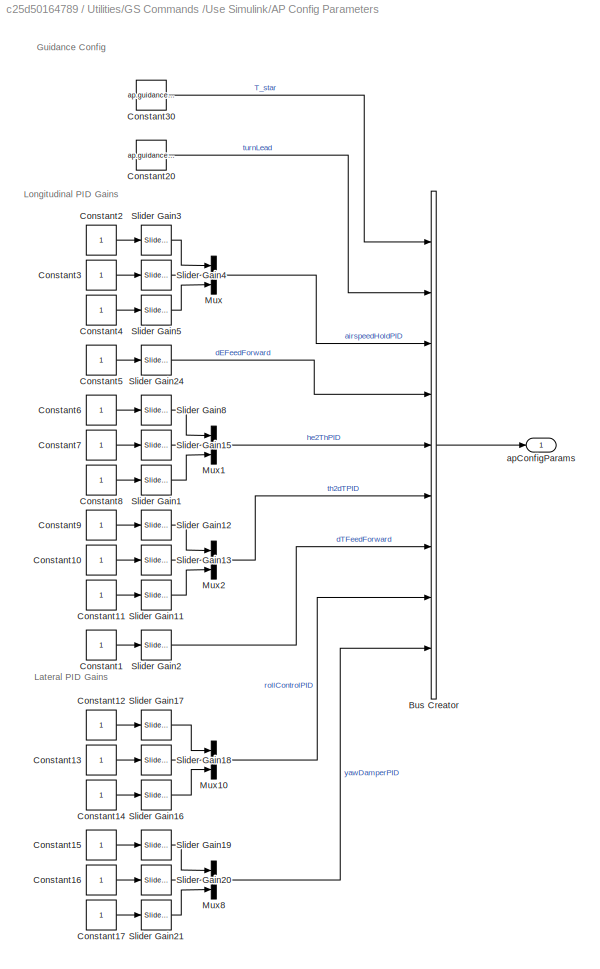
BLOCK [SubSystem] Utilities/GS Commands /Use Simulink/AP Config Parameters
  Ports = [0, 1]
  RequestExecContextInheritance = off
BLOCK [BusCreator] Utilities/GS Commands /Use Simulink/AP Config Parameters/Bus Creator
  DisplayOption = bar
  InheritFromInputs = on
  Inputs = 9
  OutDataTypeStr = Bus: apConfigParamsBus
  Ports = [9, 1]
BLOCK [Constant] Utilities/GS Commands /Use Simulink/AP Config Parameters/Constant1
  AttributesFormatString = %<Value>
  OutDataTypeStr = single
  SampleTime = ap.apSampleTime
BLOCK [Constant] Utilities/GS Commands /Use Simulink/AP Config Parameters/Constant10
  AttributesFormatString = %<Value>
  OutDataTypeStr = single
  SampleTime = ap.apSampleTime
BLOCK [Constant] Utilities/GS Commands /Use Simulink/AP Config Parameters/Constant11
  AttributesFormatString = %<Value>
  OutDataTypeStr = single
  SampleTime = ap.apSampleTime
BLOCK [Constant] Utilities/GS Commands /Use Simulink/AP Config Parameters/Constant12
  AttributesFormatString = %<Value>
  OutDataTypeStr = single
  SampleTime = ap.apSampleTime
BLOCK [Constant] Utilities/GS Commands /Use Simulink/AP Config Parameters/Constant13
  AttributesFormatString = %<Value>
  OutDataTypeStr = single
  SampleTime = ap.apSampleTime
BLOCK [Constant] Utilities/GS Commands /Use Simulink/AP Config Parameters/Constant14
  AttributesFormatString = %<Value>
  OutDataTypeStr = single
  SampleTime = ap.apSampleTime
BLOCK [Constant] Utilities/GS Commands /Use Simulink/AP Config Parameters/Constant15
  AttributesFormatString = %<Value>
  OutDataTypeStr = single
  SampleTime = ap.apSampleTime
BLOCK [Constant] Utilities/GS Commands /Use Simulink/AP Config Parameters/Constant16
  AttributesFormatString = %<Value>
  OutDataTypeStr = single
  SampleTime = ap.apSampleTime
BLOCK [Constant] Utilities/GS Commands /Use Simulink/AP Config Parameters/Constant17
  AttributesFormatString = %<Value>
  OutDataTypeStr = single
  SampleTime = ap.apSampleTime
BLOCK [Constant] Utilities/GS Commands /Use Simulink/AP Config Parameters/Constant2
  AttributesFormatString = %<Value>
  OutDataTypeStr = single
  SampleTime = ap.apSampleTime
BLOCK [Constant] Utilities/GS Commands /Use Simulink/AP Config Parameters/Constant20
  AttributesFormatString = %<Value>
  OutDataTypeStr = single
  SampleTime = ap.apSampleTime
  Value = ap.guidance.turnLeadTime
BLOCK [Constant] Utilities/GS Commands /Use Simulink/AP Config Parameters/Constant3
  AttributesFormatString = %<Value>
  OutDataTypeStr = single
  SampleTime = ap.apSampleTime
BLOCK [Constant] Utilities/GS Commands /Use Simulink/AP Config Parameters/Constant30
  AttributesFormatString = %<Value>
  OutDataTypeStr = single
  SampleTime = ap.apSampleTime
  Value = ap.guidance.tstar
BLOCK [Constant] Utilities/GS Commands /Use Simulink/AP Config Parameters/Constant4
  AttributesFormatString = %<Value>
  OutDataTypeStr = single
  SampleTime = ap.apSampleTime
BLOCK [Constant] Utilities/GS Commands /Use Simulink/AP Config Parameters/Constant5
  AttributesFormatString = %<Value>
  OutDataTypeStr = single
  SampleTime = ap.apSampleTime
BLOCK [Constant] Utilities/GS Commands /Use Simulink/AP Config Parameters/Constant6
  AttributesFormatString = %<Value>
  OutDataTypeStr = single
  SampleTime = ap.apSampleTime
BLOCK [Constant] Utilities/GS Commands /Use Simulink/AP Config Parameters/Constant7
  AttributesFormatString = %<Value>
  OutDataTypeStr = single
  SampleTime = ap.apSampleTime
BLOCK [Constant] Utilities/GS Commands /Use Simulink/AP Config Parameters/Constant8
  AttributesFormatString = %<Value>
  OutDataTypeStr = single
  SampleTime = ap.apSampleTime
BLOCK [Constant] Utilities/GS Commands /Use Simulink/AP Config Parameters/Constant9
  AttributesFormatString = %<Value>
  OutDataTypeStr = single
  SampleTime = ap.apSampleTime
BLOCK [Mux] Utilities/GS Commands /Use Simulink/AP Config Parameters/Mux
  DisplayOption = bar
  Inputs = 3
  Ports = [3, 1]
BLOCK [Mux] Utilities/GS Commands /Use Simulink/AP Config Parameters/Mux1
  DisplayOption = bar
  Inputs = 3
  Ports = [3, 1]
BLOCK [Mux] Utilities/GS Commands /Use Simulink/AP Config Parameters/Mux10
  DisplayOption = bar
  Inputs = 3
  Ports = [3, 1]
BLOCK [Mux] Utilities/GS Commands /Use Simulink/AP Config Parameters/Mux2
  DisplayOption = bar
  Inputs = 3
  Ports = [3, 1]
BLOCK [Mux] Utilities/GS Commands /Use Simulink/AP Config Parameters/Mux8
  DisplayOption = bar
  Inputs = 3
  Ports = [3, 1]
BLOCK [Reference] Utilities/GS Commands /Use Simulink/AP Config Parameters/Slider Gain1  REF=simulink/Math
Operations/Slider
Gain
  Ports = [1, 1]
  SourceBlock = simulink/Math\nOperations/Slider\nGain
  SourceProductBaseCode = SL
  SourceProductName = Simulink
  SourceType = Slider Gain
BLOCK [Reference] Utilities/GS Commands /Use Simulink/AP Config Parameters/Slider Gain11  REF=simulink/Math
Operations/Slider
Gain
  Ports = [1, 1]
  SourceBlock = simulink/Math\nOperations/Slider\nGain
  SourceProductBaseCode = SL
  SourceProductName = Simulink
  SourceType = Slider Gain
BLOCK [Reference] Utilities/GS Commands /Use Simulink/AP Config Parameters/Slider Gain12  REF=simulink/Math
Operations/Slider
Gain
  Ports = [1, 1]
  SourceBlock = simulink/Math\nOperations/Slider\nGain
  SourceProductBaseCode = SL
  SourceProductName = Simulink
  SourceType = Slider Gain
BLOCK [Reference] Utilities/GS Commands /Use Simulink/AP Config Parameters/Slider Gain13  REF=simulink/Math
Operations/Slider
Gain
  Ports = [1, 1]
  SourceBlock = simulink/Math\nOperations/Slider\nGain
  SourceProductBaseCode = SL
  SourceProductName = Simulink
  SourceType = Slider Gain
BLOCK [Reference] Utilities/GS Commands /Use Simulink/AP Config Parameters/Slider Gain15  REF=simulink/Math
Operations/Slider
Gain
  Ports = [1, 1]
  SourceBlock = simulink/Math\nOperations/Slider\nGain
  SourceProductBaseCode = SL
  SourceProductName = Simulink
  SourceType = Slider Gain
BLOCK [Reference] Utilities/GS Commands /Use Simulink/AP Config Parameters/Slider Gain16  REF=simulink/Math
Operations/Slider
Gain
  Ports = [1, 1]
  SourceBlock = simulink/Math\nOperations/Slider\nGain
  SourceProductBaseCode = SL
  SourceProductName = Simulink
  SourceType = Slider Gain
BLOCK [Reference] Utilities/GS Commands /Use Simulink/AP Config Parameters/Slider Gain17  REF=simulink/Math
Operations/Slider
Gain
  Ports = [1, 1]
  SourceBlock = simulink/Math\nOperations/Slider\nGain
  SourceProductBaseCode = SL
  SourceProductName = Simulink
  SourceType = Slider Gain
BLOCK [Reference] Utilities/GS Commands /Use Simulink/AP Config Parameters/Slider Gain18  REF=simulink/Math
Operations/Slider
Gain
  Ports = [1, 1]
  SourceBlock = simulink/Math\nOperations/Slider\nGain
  SourceProductBaseCode = SL
  SourceProductName = Simulink
  SourceType = Slider Gain
BLOCK [Reference] Utilities/GS Commands /Use Simulink/AP Config Parameters/Slider Gain19  REF=simulink/Math
Operations/Slider
Gain
  Ports = [1, 1]
  SourceBlock = simulink/Math\nOperations/Slider\nGain
  SourceProductBaseCode = SL
  SourceProductName = Simulink
  SourceType = Slider Gain
BLOCK [Reference] Utilities/GS Commands /Use Simulink/AP Config Parameters/Slider Gain2  REF=simulink/Math
Operations/Slider
Gain
  Ports = [1, 1]
  SourceBlock = simulink/Math\nOperations/Slider\nGain
  SourceProductBaseCode = SL
  SourceProductName = Simulink
  SourceType = Slider Gain
BLOCK [Reference] Utilities/GS Commands /Use Simulink/AP Config Parameters/Slider Gain20  REF=simulink/Math
Operations/Slider
Gain
  Ports = [1, 1]
  SourceBlock = simulink/Math\nOperations/Slider\nGain
  SourceProductBaseCode = SL
  SourceProductName = Simulink
  SourceType = Slider Gain
BLOCK [Reference] Utilities/GS Commands /Use Simulink/AP Config Parameters/Slider Gain21  REF=simulink/Math
Operations/Slider
Gain
  Ports = [1, 1]
  SourceBlock = simulink/Math\nOperations/Slider\nGain
  SourceProductBaseCode = SL
  SourceProductName = Simulink
  SourceType = Slider Gain
BLOCK [Reference] Utilities/GS Commands /Use Simulink/AP Config Parameters/Slider Gain24  REF=simulink/Math
Operations/Slider
Gain
  Ports = [1, 1]
  SourceBlock = simulink/Math\nOperations/Slider\nGain
  SourceProductBaseCode = SL
  SourceProductName = Simulink
  SourceType = Slider Gain
BLOCK [Reference] Utilities/GS Commands /Use Simulink/AP Config Parameters/Slider Gain3  REF=simulink/Math
Operations/Slider
Gain
  Ports = [1, 1]
  SourceBlock = simulink/Math\nOperations/Slider\nGain
  SourceProductBaseCode = SL
  SourceProductName = Simulink
  SourceType = Slider Gain
BLOCK [Reference] Utilities/GS Commands /Use Simulink/AP Config Parameters/Slider Gain4  REF=simulink/Math
Operations/Slider
Gain
  Ports = [1, 1]
  SourceBlock = simulink/Math\nOperations/Slider\nGain
  SourceProductBaseCode = SL
  SourceProductName = Simulink
  SourceType = Slider Gain
BLOCK [Reference] Utilities/GS Commands /Use Simulink/AP Config Parameters/Slider Gain5  REF=simulink/Math
Operations/Slider
Gain
  Ports = [1, 1]
  SourceBlock = simulink/Math\nOperations/Slider\nGain
  SourceProductBaseCode = SL
  SourceProductName = Simulink
  SourceType = Slider Gain
BLOCK [Reference] Utilities/GS Commands /Use Simulink/AP Config Parameters/Slider Gain8  REF=simulink/Math
Operations/Slider
Gain
  Ports = [1, 1]
  SourceBlock = simulink/Math\nOperations/Slider\nGain
  SourceProductBaseCode = SL
  SourceProductName = Simulink
  SourceType = Slider Gain
BLOCK [Outport] Utilities/GS Commands /Use Simulink/AP Config Parameters/apConfigParams
  IconDisplay = Port number
  OutDataTypeStr = Bus: apConfigParamsBus
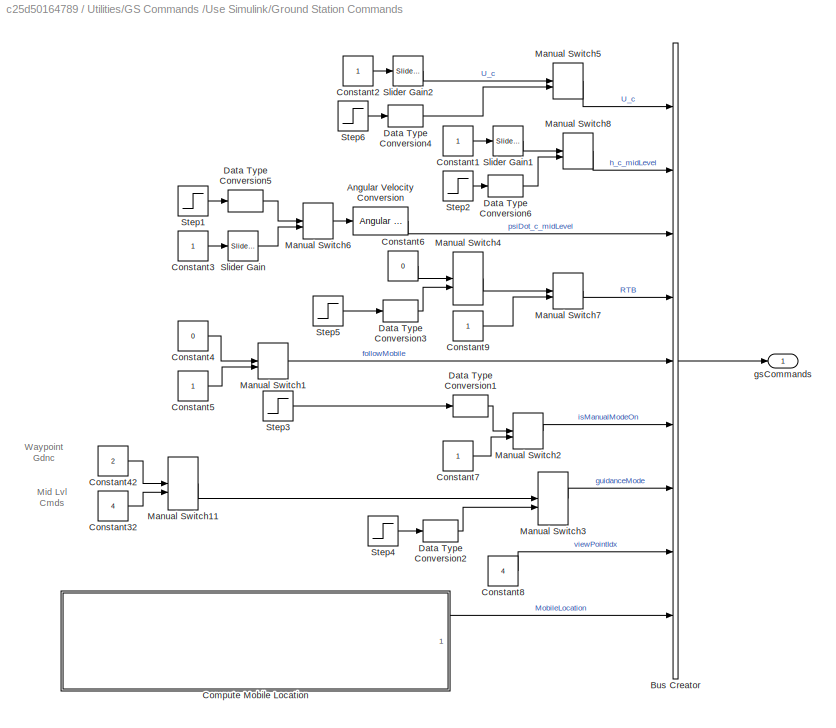
BLOCK [SubSystem] Utilities/GS Commands /Use Simulink/Ground Station Commands
  Ports = [0, 1]
  RequestExecContextInheritance = off
BLOCK [Reference] Utilities/GS Commands /Use Simulink/Ground Station Commands/Angular Velocity Conversion  REF=aerolibconvert2/Angular Velocity
Conversion
  Ports = [1, 1]
  SourceBlock = aerolibconvert2/Angular Velocity\nConversion
  SourceProductBaseCode = AE
  SourceProductName = Aerospace Blockset
  SourceType = Angular Velocity Conversion
BLOCK [BusCreator] Utilities/GS Commands /Use Simulink/Ground Station Commands/Bus Creator
  DisplayOption = bar
  InheritFromInputs = on
  Inputs = 9
  NonVirtualBus = on
  OutDataTypeStr = Bus: gsCommandsBus
  Ports = [9, 1]
BLOCK [SubSystem] Utilities/GS Commands /Use Simulink/Ground Station Commands/Compute Mobile Location
  Ports = [0, 1]
  RequestExecContextInheritance = off
BLOCK [Reference] Utilities/GS Commands /Use Simulink/Ground Station Commands/Compute Mobile Location/Car Model Input Profiles  REF=SignalEditorBlockLib/Signal Editor
  Ports = [0, 2]
  SourceBlock = SignalEditorBlockLib/Signal Editor
  SourceProductBaseCode = SL
  SourceProductName = Simulink
  SourceType = SignalEditor
  UserDataPersistent = on
BLOCK [Constant] Utilities/GS Commands /Use Simulink/Ground Station Commands/Compute Mobile Location/Constant
  AttributesFormatString = %<Value>
  OutDataTypeStr = single
  Value = uav.ic.gsH
BLOCK [DataTypeConversion] Utilities/GS Commands /Use Simulink/Ground Station Commands/Compute Mobile Location/Data Type Conversion
  OutDataTypeStr = single
  RndMeth = Floor
  SaturateOnIntegerOverflow = off
BLOCK [DataTypeConversion] Utilities/GS Commands /Use Simulink/Ground Station Commands/Compute Mobile Location/Data Type Conversion4
  OutDataTypeStr = single
  RndMeth = Floor
  SaturateOnIntegerOverflow = off
BLOCK [Reference] Utilities/GS Commands /Use Simulink/Ground Station Commands/Compute Mobile Location/Flat Earth to LLA  REF=aerolibtransform2/Flat Earth to LLA
  Ports = [2, 2]
  SourceBlock = aerolibtransform2/Flat Earth to LLA
  SourceProductBaseCode = AE
  SourceProductName = Aerospace Blockset
  SourceType = Flat Earth to LLA
BLOCK [Outport] Utilities/GS Commands /Use Simulink/Ground Station Commands/Compute Mobile Location/Mobile Location
  IconDisplay = Port number
BLOCK [Mux] Utilities/GS Commands /Use Simulink/Ground Station Commands/Compute Mobile Location/Mux
  DisplayOption = bar
  Inputs = 2
  Ports = [2, 1]
BLOCK [SubSystem] Utilities/GS Commands /Use Simulink/Ground Station Commands/Compute Mobile Location/Simple Car Model
  Ports = [2, 1]
  RequestExecContextInheritance = off
BLOCK [Inport] Utilities/GS Commands /Use Simulink/Ground Station Commands/Compute Mobile Location/Simple Car Model/Heading
  IconDisplay = Port number
BLOCK [SubSystem] Utilities/GS Commands /Use Simulink/Ground Station Commands/Compute Mobile Location/Simple Car Model/Heading//Speed to Velocity
  Ports = [2, 1]
  RequestExecContextInheritance = off
BLOCK [SubSystem] Utilities/GS Commands /Use Simulink/Ground Station Commands/Compute Mobile Location/Simple Car Model/Heading//Speed to Velocity/1D Discrete Filter1
  AttributesFormatString = Fc = 10 Hz
  Ports = [1, 1]
  RTWFcnName = TustinFilter3D
  RTWFcnNameOpts = User specified
  RTWFileNameOpts = Use function name
  RTWSystemCode = Reusable function
  RequestExecContextInheritance = off
BLOCK [DataTypeConversion] Utilities/GS Commands /Use Simulink/Ground Station Commands/Compute Mobile Location/Simple Car Model/Heading//Speed to Velocity/1D Discrete Filter1/Data Type Conversion1
  OutDataTypeStr = single
  RndMeth = Floor
  SaturateOnIntegerOverflow = off
BLOCK [DataTypeConversion] Utilities/GS Commands /Use Simulink/Ground Station Commands/Compute Mobile Location/Simple Car Model/Heading//Speed to Velocity/1D Discrete Filter1/Data Type Conversion2
  OutDataTypeStr = double
  RndMeth = Floor
  SaturateOnIntegerOverflow = off
BLOCK [SubSystem] Utilities/GS Commands /Use Simulink/Ground Station Commands/Compute Mobile Location/Simple Car Model/Heading//Speed to Velocity/1D Discrete Filter1/Filter2
  Ports = [1, 1]
  RequestExecContextInheritance = off
BLOCK [DiscreteZeroPole] Utilities/GS Commands /Use Simulink/Ground Station Commands/Compute Mobile Location/Simple Car Model/Heading//Speed to Velocity/1D Discrete Filter1/Filter2/Discrete Zero-Pole
  Gain = g_d
  Poles = p_d
  SampleTime = -1
  Zeros = z_d
BLOCK [Inport] Utilities/GS Commands /Use Simulink/Ground Station Commands/Compute Mobile Location/Simple Car Model/Heading//Speed to Velocity/1D Discrete Filter1/Filter2/In1
  IconDisplay = Port number
BLOCK [Outport] Utilities/GS Commands /Use Simulink/Ground Station Commands/Compute Mobile Location/Simple Car Model/Heading//Speed to Velocity/1D Discrete Filter1/Filter2/Out1
  IconDisplay = Port number
BLOCK [Inport] Utilities/GS Commands /Use Simulink/Ground Station Commands/Compute Mobile Location/Simple Car Model/Heading//Speed to Velocity/1D Discrete Filter1/In1
  IconDisplay = Port number
BLOCK [Outport] Utilities/GS Commands /Use Simulink/Ground Station Commands/Compute Mobile Location/Simple Car Model/Heading//Speed to Velocity/1D Discrete Filter1/Out1
  IconDisplay = Port number
BLOCK [Sum] Utilities/GS Commands /Use Simulink/Ground Station Commands/Compute Mobile Location/Simple Car Model/Heading//Speed to Velocity/Add
  InputSameDT = off
  Inputs = +-
  OutDataTypeStr = Inherit: Inherit via internal rule
  Ports = [2, 1]
  SaturateOnIntegerOverflow = off
BLOCK [Reference] Utilities/GS Commands /Use Simulink/Ground Station Commands/Compute Mobile Location/Simple Car Model/Heading//Speed to Velocity/Angle Conversion  REF=aerolibconvert2/Angle Conversion
  Ports = [1, 1]
  SourceBlock = aerolibconvert2/Angle Conversion
  SourceProductBaseCode = AE
  SourceProductName = Aerospace Blockset
  SourceType = Angle Conversion
BLOCK [Product] Utilities/GS Commands /Use Simulink/Ground Station Commands/Compute Mobile Location/Simple Car Model/Heading//Speed to Velocity/Divide
  InputSameDT = off
  OutDataTypeStr = Inherit: Inherit via internal rule
  Ports = [2, 1]
  RndMeth = Floor
  SaturateOnIntegerOverflow = off
BLOCK [Product] Utilities/GS Commands /Use Simulink/Ground Station Commands/Compute Mobile Location/Simple Car Model/Heading//Speed to Velocity/Divide1
  InputSameDT = off
  OutDataTypeStr = Inherit: Inherit via internal rule
  Ports = [2, 1]
  RndMeth = Floor
  SaturateOnIntegerOverflow = off
BLOCK [Inport] Utilities/GS Commands /Use Simulink/Ground Station Commands/Compute Mobile Location/Simple Car Model/Heading//Speed to Velocity/Heading
  IconDisplay = Port number
BLOCK [Mux] Utilities/GS Commands /Use Simulink/Ground Station Commands/Compute Mobile Location/Simple Car Model/Heading//Speed to Velocity/Mux
  DisplayOption = bar
  Inputs = 3
  Ports = [3, 1]
BLOCK [Inport] Utilities/GS Commands /Use Simulink/Ground Station Commands/Compute Mobile Location/Simple Car Model/Heading//Speed to Velocity/Speed
  IconDisplay = Port number
  Port = 2
BLOCK [Constant] Utilities/GS Commands /Use Simulink/Ground Station Commands/Compute Mobile Location/Simple Car Model/Heading//Speed to Velocity/Speed1
  AttributesFormatString = %<Value>
  Value = 0
BLOCK [Constant] Utilities/GS Commands /Use Simulink/Ground Station Commands/Compute Mobile Location/Simple Car Model/Heading//Speed to Velocity/Speed2
  AttributesFormatString = %<Value>
  SampleTime = 0.01
  Value = 450*pi/180
BLOCK [Trigonometry] Utilities/GS Commands /Use Simulink/Ground Station Commands/Compute Mobile Location/Simple Car Model/Heading//Speed to Velocity/Trigonometric Function
  Operator = cos
  Ports = [1, 1]
BLOCK [Trigonometry] Utilities/GS Commands /Use Simulink/Ground Station Commands/Compute Mobile Location/Simple Car Model/Heading//Speed to Velocity/Trigonometric Function1
  Ports = [1, 1]
BLOCK [Outport] Utilities/GS Commands /Use Simulink/Ground Station Commands/Compute Mobile Location/Simple Car Model/Heading//Speed to Velocity/Velocity
  IconDisplay = Port number
BLOCK [SubSystem] Utilities/GS Commands /Use Simulink/Ground Station Commands/Compute Mobile Location/Simple Car Model/Simple Car Model
  Ports = [1, 1]
  RequestExecContextInheritance = off
BLOCK [Constant] Utilities/GS Commands /Use Simulink/Ground Station Commands/Compute Mobile Location/Simple Car Model/Simple Car Model/Constant13
  AttributesFormatString = %<Value>
  OutDataTypeStr = single
  Value = [0 0 0]
BLOCK [DataTypeConversion] Utilities/GS Commands /Use Simulink/Ground Station Commands/Compute Mobile Location/Simple Car Model/Simple Car Model/Data Type Conversion
  OutDataTypeStr = single
  RndMeth = Floor
  SaturateOnIntegerOverflow = off
BLOCK [DataTypeConversion] Utilities/GS Commands /Use Simulink/Ground Station Commands/Compute Mobile Location/Simple Car Model/Simple Car Model/Data Type Conversion1
  OutDataTypeStr = single
  RndMeth = Floor
  SaturateOnIntegerOverflow = off
BLOCK [DiscreteIntegrator] Utilities/GS Commands /Use Simulink/Ground Station Commands/Compute Mobile Location/Simple Car Model/Simple Car Model/Discrete-Time Integrator
  ICPrevOutput = DiscIntNeverNeededParam
  ICPrevScaledInput = DiscIntNeverNeededParam
  InitialConditionSource = external
  Ports = [2, 1]
  SampleTime = 0.01
BLOCK [Inport] Utilities/GS Commands /Use Simulink/Ground Station Commands/Compute Mobile Location/Simple Car Model/Simple Car Model/Velocity
  IconDisplay = Port number
BLOCK [Outport] Utilities/GS Commands /Use Simulink/Ground Station Commands/Compute Mobile Location/Simple Car Model/Simple Car Model/p_cg
  IconDisplay = Port number
BLOCK [Inport] Utilities/GS Commands /Use Simulink/Ground Station Commands/Compute Mobile Location/Simple Car Model/Speed
  IconDisplay = Port number
  Port = 2
BLOCK [Outport] Utilities/GS Commands /Use Simulink/Ground Station Commands/Compute Mobile Location/Simple Car Model/basePoint
  IconDisplay = Port number
BLOCK [Constant] Utilities/GS Commands /Use Simulink/Ground Station Commands/Constant1
  AttributesFormatString = %<Value>
  OutDataTypeStr = single
  SampleTime = ap.apSampleTime
BLOCK [Constant] Utilities/GS Commands /Use Simulink/Ground Station Commands/Constant2
  AttributesFormatString = %<Value>
  OutDataTypeStr = single
  SampleTime = ap.apSampleTime
BLOCK [Constant] Utilities/GS Commands /Use Simulink/Ground Station Commands/Constant3
  AttributesFormatString = %<Value>
  OutDataTypeStr = single
  SampleTime = ap.apSampleTime
BLOCK [Constant] Utilities/GS Commands /Use Simulink/Ground Station Commands/Constant32
  AttributesFormatString = %<Value>
  OutDataTypeStr = uint8
  SampleTime = ap.apSampleTime
  Value = 4
BLOCK [Constant] Utilities/GS Commands /Use Simulink/Ground Station Commands/Constant4
  AttributesFormatString = %<Value>
  OutDataTypeStr = uint8
  SampleTime = ap.apSampleTime
  Value = 0
BLOCK [Constant] Utilities/GS Commands /Use Simulink/Ground Station Commands/Constant42
  AttributesFormatString = %<Value>
  OutDataTypeStr = uint8
  SampleTime = ap.apSampleTime
  Value = 2
BLOCK [Constant] Utilities/GS Commands /Use Simulink/Ground Station Commands/Constant5
  AttributesFormatString = %<Value>
  OutDataTypeStr = uint8
  SampleTime = ap.apSampleTime
BLOCK [Constant] Utilities/GS Commands /Use Simulink/Ground Station Commands/Constant6
  AttributesFormatString = %<Value>
  OutDataTypeStr = uint8
  SampleTime = ap.apSampleTime
  Value = 0
BLOCK [Constant] Utilities/GS Commands /Use Simulink/Ground Station Commands/Constant7
  AttributesFormatString = %<Value>
  OutDataTypeStr = uint8
  SampleTime = ap.apSampleTime
BLOCK [Constant] Utilities/GS Commands /Use Simulink/Ground Station Commands/Constant8
  AttributesFormatString = %<Value>
  OutDataTypeStr = uint8
  SampleTime = ap.apSampleTime
  Value = 4
BLOCK [Constant] Utilities/GS Commands /Use Simulink/Ground Station Commands/Constant9
  AttributesFormatString = %<Value>
  OutDataTypeStr = uint8
  SampleTime = ap.apSampleTime
BLOCK [DataTypeConversion] Utilities/GS Commands /Use Simulink/Ground Station Commands/Data Type Conversion1
  OutDataTypeStr = uint8
  RndMeth = Floor
  SaturateOnIntegerOverflow = off
BLOCK [DataTypeConversion] Utilities/GS Commands /Use Simulink/Ground Station Commands/Data Type Conversion2
  OutDataTypeStr = uint8
  RndMeth = Floor
  SaturateOnIntegerOverflow = off
BLOCK [DataTypeConversion] Utilities/GS Commands /Use Simulink/Ground Station Commands/Data Type Conversion3
  OutDataTypeStr = uint8
  RndMeth = Floor
  SaturateOnIntegerOverflow = off
BLOCK [DataTypeConversion] Utilities/GS Commands /Use Simulink/Ground Station Commands/Data Type Conversion4
  OutDataTypeStr = single
  RndMeth = Floor
  SaturateOnIntegerOverflow = off
BLOCK [DataTypeConversion] Utilities/GS Commands /Use Simulink/Ground Station Commands/Data Type Conversion5
  OutDataTypeStr = single
  RndMeth = Floor
  SaturateOnIntegerOverflow = off
BLOCK [DataTypeConversion] Utilities/GS Commands /Use Simulink/Ground Station Commands/Data Type Conversion6
  OutDataTypeStr = single
  RndMeth = Floor
  SaturateOnIntegerOverflow = off
BLOCK [ManualSwitch] Utilities/GS Commands /Use Simulink/Ground Station Commands/Manual Switch1
BLOCK [ManualSwitch] Utilities/GS Commands /Use Simulink/Ground Station Commands/Manual Switch11
BLOCK [ManualSwitch] Utilities/GS Commands /Use Simulink/Ground Station Commands/Manual Switch2
BLOCK [ManualSwitch] Utilities/GS Commands /Use Simulink/Ground Station Commands/Manual Switch3
BLOCK [ManualSwitch] Utilities/GS Commands /Use Simulink/Ground Station Commands/Manual Switch4
  CurrentSetting = 0
BLOCK [ManualSwitch] Utilities/GS Commands /Use Simulink/Ground Station Commands/Manual Switch5
  CurrentSetting = 0
BLOCK [ManualSwitch] Utilities/GS Commands /Use Simulink/Ground Station Commands/Manual Switch6
BLOCK [ManualSwitch] Utilities/GS Commands /Use Simulink/Ground Station Commands/Manual Switch7
BLOCK [ManualSwitch] Utilities/GS Commands /Use Simulink/Ground Station Commands/Manual Switch8
BLOCK [Reference] Utilities/GS Commands /Use Simulink/Ground Station Commands/Slider Gain  REF=simulink/Math
Operations/Slider
Gain
  Ports = [1, 1]
  SourceBlock = simulink/Math\nOperations/Slider\nGain
  SourceProductBaseCode = SL
  SourceProductName = Simulink
  SourceType = Slider Gain
BLOCK [Reference] Utilities/GS Commands /Use Simulink/Ground Station Commands/Slider Gain1  REF=simulink/Math
Operations/Slider
Gain
  Ports = [1, 1]
  SourceBlock = simulink/Math\nOperations/Slider\nGain
  SourceProductBaseCode = SL
  SourceProductName = Simulink
  SourceType = Slider Gain
BLOCK [Reference] Utilities/GS Commands /Use Simulink/Ground Station Commands/Slider Gain2  REF=simulink/Math
Operations/Slider
Gain
  Ports = [1, 1]
  SourceBlock = simulink/Math\nOperations/Slider\nGain
  SourceProductBaseCode = SL
  SourceProductName = Simulink
  SourceType = Slider Gain
BLOCK [Step] Utilities/GS Commands /Use Simulink/Ground Station Commands/Step1
  After = 5
  SampleTime = ap.apSampleTime
  Time = 10
BLOCK [Step] Utilities/GS Commands /Use Simulink/Ground Station Commands/Step2
  After = 500
  Before = uav.ic.Pos_0(3)
  SampleTime = ap.apSampleTime
  Time = 10
BLOCK [Step] Utilities/GS Commands /Use Simulink/Ground Station Commands/Step3
  After = 0
  Before = 1
  SampleTime = ap.apSampleTime
  Time = 0.01
BLOCK [Step] Utilities/GS Commands /Use Simulink/Ground Station Commands/Step4
  After = 3
  Before = 2
  SampleTime = ap.apSampleTime
  Time = 175
BLOCK [Step] Utilities/GS Commands /Use Simulink/Ground Station Commands/Step5
  SampleTime = ap.apSampleTime
  Time = 350
BLOCK [Step] Utilities/GS Commands /Use Simulink/Ground Station Commands/Step6
  After = 21
  Before = 18
  SampleTime = ap.apSampleTime
  Time = 220
BLOCK [Outport] Utilities/GS Commands /Use Simulink/Ground Station Commands/gsCommands
  IconDisplay = Port number
  OutDataTypeStr = Bus: gsCommandsBus
BLOCK [Terminator] Utilities/GS Commands /Use Simulink/Terminator
BLOCK [SubSystem] Utilities/GS Commands /Use Simulink/Waypoint Mission
  Ports = [0, 1]
  RequestExecContextInheritance = off
BLOCK [BusCreator] Utilities/GS Commands /Use Simulink/Waypoint Mission/Bus Creator
  DisplayOption = bar
  InheritFromInputs = on
  Inputs = 3
  NonVirtualBus = on
  OutDataTypeStr = Bus: waypoint
  Ports = [3, 1]
BLOCK [BusCreator] Utilities/GS Commands /Use Simulink/Waypoint Mission/Bus Creator1
  DisplayOption = bar
  InheritFromInputs = on
  Inputs = 3
  NonVirtualBus = on
  OutDataTypeStr = Bus: waypoint
  Ports = [3, 1]
BLOCK [BusCreator] Utilities/GS Commands /Use Simulink/Waypoint Mission/Bus Creator2
  DisplayOption = bar
  InheritFromInputs = on
  Inputs = 3
  NonVirtualBus = on
  OutDataTypeStr = Bus: waypoint
  Ports = [3, 1]
BLOCK [BusCreator] Utilities/GS Commands /Use Simulink/Waypoint Mission/Bus Creator3
  DisplayOption = bar
  InheritFromInputs = on
  Inputs = 3
  NonVirtualBus = on
  OutDataTypeStr = Bus: waypoint
  Ports = [3, 1]
BLOCK [BusCreator] Utilities/GS Commands /Use Simulink/Waypoint Mission/Bus Creator4
  DisplayOption = bar
  InheritFromInputs = on
  Inputs = 3
  NonVirtualBus = on
  OutDataTypeStr = Bus: waypoint
  Ports = [3, 1]
BLOCK [BusCreator] Utilities/GS Commands /Use Simulink/Waypoint Mission/Bus Creator5
  DisplayOption = bar
  InheritFromInputs = on
  Inputs = 3
  NonVirtualBus = on
  OutDataTypeStr = Bus: waypoint
  Ports = [3, 1]
BLOCK [BusCreator] Utilities/GS Commands /Use Simulink/Waypoint Mission/Bus Creator6
  DisplayOption = bar
  InheritFromInputs = on
  Inputs = 3
  NonVirtualBus = on
  OutDataTypeStr = Bus: waypoint
  Ports = [3, 1]
BLOCK [BusCreator] Utilities/GS Commands /Use Simulink/Waypoint Mission/Bus Creator7
  DisplayOption = bar
  InheritFromInputs = on
  Inputs = 3
  NonVirtualBus = on
  OutDataTypeStr = Bus: waypoint
  Ports = [3, 1]
BLOCK [BusCreator] Utilities/GS Commands /Use Simulink/Waypoint Mission/Bus Creator8
  DisplayOption = bar
  InheritFromInputs = on
  Inputs = 3
  NonVirtualBus = on
  OutDataTypeStr = Bus: waypoint
  Ports = [3, 1]
BLOCK [BusCreator] Utilities/GS Commands /Use Simulink/Waypoint Mission/Bus Creator9
  DisplayOption = bar
  InheritFromInputs = on
  Inputs = 3
  NonVirtualBus = on
  OutDataTypeStr = Bus: waypoint
  Ports = [3, 1]
BLOCK [Constant] Utilities/GS Commands /Use Simulink/Waypoint Mission/Constant
  AttributesFormatString = %<Value>
  OutDataTypeStr = single
  Value = [uav.ic.gsLL uav.ic.gsH]
BLOCK [Constant] Utilities/GS Commands /Use Simulink/Waypoint Mission/Constant1
  AttributesFormatString = %<Value>
  OutDataTypeStr = uint8
BLOCK [Constant] Utilities/GS Commands /Use Simulink/Waypoint Mission/Constant10
  AttributesFormatString = %<Value>
  OutDataTypeStr = single
  Value = flat2lla([Xpoints(8) Ypoints(8) Zpoints(8)], [uav.ic.gsLL], 0, uav.ic.gsH)
BLOCK [Constant] Utilities/GS Commands /Use Simulink/Waypoint Mission/Constant11
  AttributesFormatString = %<Value>
  OutDataTypeStr = single
  Value = flat2lla([Xpoints(9) Ypoints(9) Zpoints(9)], [uav.ic.gsLL], 0, uav.ic.gsH)
BLOCK [Constant] Utilities/GS Commands /Use Simulink/Waypoint Mission/Constant2
  AttributesFormatString = %<Value>
  OutDataTypeStr = single
  Value = 0
BLOCK [Constant] Utilities/GS Commands /Use Simulink/Waypoint Mission/Constant3
  AttributesFormatString = %<Value>
  OutDataTypeStr = single
  Value = flat2lla([Xpoints(1) Ypoints(1) Zpoints(1)], [uav.ic.gsLL], 0, uav.ic.gsH)
BLOCK [Constant] Utilities/GS Commands /Use Simulink/Waypoint Mission/Constant4
  AttributesFormatString = %<Value>
  OutDataTypeStr = single
  Value = flat2lla([Xpoints(2) Ypoints(2) Zpoints(2)], [uav.ic.gsLL], 0, uav.ic.gsH)
BLOCK [Constant] Utilities/GS Commands /Use Simulink/Waypoint Mission/Constant5
  AttributesFormatString = %<Value>
  OutDataTypeStr = single
  Value = flat2lla([Xpoints(3) Ypoints(3) Zpoints(3)], [uav.ic.gsLL], 0, uav.ic.gsH)
BLOCK [Constant] Utilities/GS Commands /Use Simulink/Waypoint Mission/Constant6
  AttributesFormatString = %<Value>
  OutDataTypeStr = single
  Value = flat2lla([Xpoints(4) Ypoints(4) Zpoints(4)], [uav.ic.gsLL], 0, uav.ic.gsH)
BLOCK [Constant] Utilities/GS Commands /Use Simulink/Waypoint Mission/Constant7
  AttributesFormatString = %<Value>
  OutDataTypeStr = single
  Value = flat2lla([Xpoints(5) Ypoints(5) Zpoints(5)], [uav.ic.gsLL], 0, uav.ic.gsH)
BLOCK [Constant] Utilities/GS Commands /Use Simulink/Waypoint Mission/Constant8
  AttributesFormatString = %<Value>
  OutDataTypeStr = single
  Value = flat2lla([Xpoints(6) Ypoints(6) Zpoints(6)], [uav.ic.gsLL], 0, uav.ic.gsH)
BLOCK [Constant] Utilities/GS Commands /Use Simulink/Waypoint Mission/Constant9
  AttributesFormatString = %<Value>
  OutDataTypeStr = single
  Value = flat2lla([Xpoints(7) Ypoints(7) Zpoints(7)], [uav.ic.gsLL], 0, uav.ic.gsH)
BLOCK [Concatenate] Utilities/GS Commands /Use Simulink/Waypoint Mission/Vector Concatenate
  NumInputs = 10
  Ports = [10, 1]
BLOCK [Outport] Utilities/GS Commands /Use Simulink/Waypoint Mission/uavMission
  IconDisplay = Port number
BLOCK [Outport] Utilities/GS Commands /Use Simulink/apConfigParams
  IconDisplay = Port number
  OutDataTypeStr = Bus: apConfigParamsBus
  Port = 3
BLOCK [Inport] Utilities/GS Commands /Use Simulink/apStatus
  IconDisplay = Port number
  OutDataTypeStr = Bus: apStatusBus
BLOCK [Outport] Utilities/GS Commands /Use Simulink/gsCommands
  IconDisplay = Port number
  OutDataTypeStr = Bus: gsCommandsBus
  Port = 2
BLOCK [Outport] Utilities/GS Commands /Use Simulink/uavMission
  IconDisplay = Port number
  OutDataTypeStr = Bus: waypoint
BLOCK [Outport] Utilities/GS Commands /apConfigParams
  IconDisplay = Port number
  OutDataTypeStr = Bus: apConfigParamsBus
  Port = 3
BLOCK [Inport] Utilities/GS Commands /apStatus
  IconDisplay = Port number
  OutDataTypeStr = Bus: apStatusBus
BLOCK [Outport] Utilities/GS Commands /gsCommands
  IconDisplay = Port number
  OutDataTypeStr = Bus: gsCommandsBus
  Port = 2
BLOCK [Outport] Utilities/GS Commands /uavMission
  IconDisplay = Port number
  OutDataTypeStr = Bus: waypoint
BLOCK [SubSystem] Utilities/NaiveNoiseGen
  Ports = [2, 1]
  RequestExecContextInheritance = off
BLOCK [Sum] Utilities/NaiveNoiseGen/Add
  InputSameDT = off
  OutDataTypeStr = Inherit: Inherit via internal rule
  Ports = [2, 1]
  SaturateOnIntegerOverflow = off
BLOCK [Reference] Utilities/NaiveNoiseGen/Band-Limited White Noise  REF=simulink/Sources/Band-Limited
White Noise
  Ports = [0, 1]
  SourceBlock = simulink/Sources/Band-Limited\nWhite Noise
  SourceProductBaseCode = SL
  SourceProductName = Simulink
  SourceType = Band-Limited White Noise.
BLOCK [Gain] Utilities/NaiveNoiseGen/Gain
  AttributesFormatString = %<Gain>
  Gain = ng
  OutDataTypeStr = Inherit: Inherit via internal rule
  ParamDataTypeStr = Inherit: Inherit via internal rule
  SaturateOnIntegerOverflow = off
BLOCK [Inport] Utilities/NaiveNoiseGen/Noise On
  IconDisplay = Port number
  Port = 2
BLOCK [Inport] Utilities/NaiveNoiseGen/Signal In
  IconDisplay = Port number
BLOCK [Outport] Utilities/NaiveNoiseGen/Signal Out
  IconDisplay = Port number
BLOCK [Switch] Utilities/NaiveNoiseGen/Switch
  InputSameDT = off
  SaturateOnIntegerOverflow = off
  Threshold = 0.3
BLOCK [SubSystem] Utilities/Negative Protected Sqrt
  Ports = [1, 1]
  RequestExecContextInheritance = off
BLOCK [Sqrt] Utilities/Negative Protected Sqrt/Math Function1
  AlgorithmType = Newton-Raphson
  AttributesFormatString = %<AlgorithmType>
  OutputSignalType = real
BLOCK [Saturate] Utilities/Negative Protected Sqrt/Zero Bound
  AttributesFormatString = [%<LowerLimit>  %<UpperLimit>]
  InputPortMap = u0
  LowerLimit = 0.001
  Ports = [1, 1]
  UpperLimit = inf
BLOCK [Outport] Utilities/Negative Protected Sqrt/sqrt(x)
  IconDisplay = Port number
BLOCK [Inport] Utilities/Negative Protected Sqrt/x
  IconDisplay = Port number
BLOCK [SubSystem] Utilities/Normalize Vector
  Ports = [1, 1]
  RequestExecContextInheritance = off
BLOCK [Reference] Utilities/Normalize Vector/ Compute Norm  REF=$bdroot/Utilities/ Compute Norm
  Ports = [1, 1]
  SourceBlock = $bdroot/Utilities/ Compute Norm
  SourceType = SubSystem
BLOCK [Product] Utilities/Normalize Vector/Divide
  InputSameDT = off
  Inputs = */
  OutDataTypeStr = Inherit: Inherit via internal rule
  Ports = [2, 1]
  RndMeth = Floor
  SaturateOnIntegerOverflow = off
BLOCK [Outport] Utilities/Normalize Vector/Normalized
  IconDisplay = Port number
BLOCK [Inport] Utilities/Normalize Vector/Vector
  IconDisplay = Port number
BLOCK [Saturate] Utilities/Normalize Vector/Zero Bound
  AttributesFormatString = [%<LowerLimit>  %<UpperLimit>]
  InputPortMap = u0
  LowerLimit = 0.001
  Ports = [1, 1]
  UpperLimit = inf
BLOCK [SubSystem] Utilities/Sample GPS data
  Ports = [1, 1]
  RequestExecContextInheritance = off
BLOCK [Inport] Utilities/Sample GPS data/GPS
  IconDisplay = Port number
BLOCK [Outport] Utilities/Sample GPS data/GPS_samp
  IconDisplay = Port number
BLOCK [RateTransition] Utilities/Sample GPS data/Rate Transition
  AttributesFormatString = %<OutPortSampleTime>
  Deterministic = off
  OutPortSampleTime = sensors.gpsRefreshRate
BLOCK [SubSystem] Utilities/Zero Out Z
  Ports = [1, 1]
  RequestExecContextInheritance = off
BLOCK [Constant] Utilities/Zero Out Z/Constant
  AttributesFormatString = %<Value>
  OutDataTypeStr = single
  Value = 0
BLOCK [Demux] Utilities/Zero Out Z/Demux
  DisplayOption = bar
  Outputs = [2 1]
  Ports = [1, 2]
BLOCK [Mux] Utilities/Zero Out Z/Mux
  DisplayOption = bar
  Inputs = 2
  Ports = [2, 1]
BLOCK [Terminator] Utilities/Zero Out Z/Terminator
BLOCK [Outport] Utilities/Zero Out Z/[a b 0]
  IconDisplay = Port number
BLOCK [Inport] Utilities/Zero Out Z/[a b c]
  IconDisplay = Port number
BLOCK [SubSystem] Utilities/yaw rate fact
  Ports = [2, 1]
  RequestExecContextInheritance = off
BLOCK [Inport] Utilities/yaw rate fact/Airspeed
  IconDisplay = Port number
  Port = 2
BLOCK [Constant] Utilities/yaw rate fact/Cmq3
  AttributesFormatString = %<Value>
  Value = .5
BLOCK [Constant] Utilities/yaw rate fact/Cmq4
  AttributesFormatString = %<Value>
  Value = uav.geometry.span
BLOCK [Product] Utilities/yaw rate fact/Product1
  InputSameDT = off
  Inputs = ***/
  Ports = [4, 1]
  RndMeth = Floor
BLOCK [Saturate] Utilities/yaw rate fact/Saturation
  AttributesFormatString = [%<LowerLimit>  %<UpperLimit>]
  InputPortMap = u0
  LowerLimit = 0.1
  Ports = [1, 1]
  UpperLimit = inf
BLOCK [Outport] Utilities/yaw rate fact/Yaw Rate Fac
  IconDisplay = Port number
BLOCK [Inport] Utilities/yaw rate fact/r
  IconDisplay = Port number
ANNOTATION Guidance/L2+ Guidance Law/Get Sin, Cos eta/Get L2 . Ve: Note that since L2(3) == Ve(3) == 0, the dot product is simplified
ANNOTATION Guidance/L2+ Guidance Law/Get Sin, Cos eta/Get L2 x Ve: Note that since L2(3) == Ve(3) == 0, the cross product is greatly simplified
ANNOTATION Utilities/GS Commands /Use Simulink/AP Config Parameters: Guidance Config
ANNOTATION Utilities/GS Commands /Use Simulink/AP Config Parameters: Lateral PID Gains
ANNOTATION Utilities/GS Commands /Use Simulink/AP Config Parameters: Longitudinal PID Gains
ANNOTATION Utilities/GS Commands /Use Simulink/Ground Station Commands: Mid Lvl Cmds
ANNOTATION Utilities/GS Commands /Use Simulink/Ground Station Commands: Waypoint Gdnc
ANNOTATION Utilities/GS Commands /Use Simulink/Ground Station Commands/Compute Mobile Location: Simple 2D Car Motion Model
LINE Air Utilities/Air Density from Height/Add:1 -> Air Utilities/Air Density from Height/Math Function:1
LINE Air Utilities/Air Density from Height/Constant 2 from Model:1 -> Air Utilities/Air Density from Height/Math Function:2
LINE Air Utilities/Air Density from Height/Constant from Model:1 -> Air Utilities/Air Density from Height/Divide:2
LINE Air Utilities/Air Density from Height/Constant:1 -> Air Utilities/Air Density from Height/Add:1
LINE Air Utilities/Air Density from Height/Divide1:1 -> Air Utilities/Air Density from Height/rho :1
LINE Air Utilities/Air Density from Height/Divide:1 -> Air Utilities/Air Density from Height/Add:2
LINE Air Utilities/Air Density from Height/Length Conversion:1 -> Air Utilities/Air Density from Height/Divide:1
LINE Air Utilities/Air Density from Height/Math Function:1 -> Air Utilities/Air Density from Height/Divide1:1
LINE Air Utilities/Air Density from Height/Rho_0:1 -> Air Utilities/Air Density from Height/Divide1:2
LINE Air Utilities/Air Density from Height/h:1 -> Air Utilities/Air Density from Height/Length Conversion:1
LINE Air Utilities/Compute Airspeed/Divide2:1 -> Air Utilities/Compute Airspeed/Zero Protect1:1
LINE Air Utilities/Compute Airspeed/Dyn P:1 -> Air Utilities/Compute Airspeed/Divide2:2
LINE Air Utilities/Compute Airspeed/Math Function1:1 -> Air Utilities/Compute Airspeed/Airspeed :1
LINE Air Utilities/Compute Airspeed/Zero Protect1/Divide2:1 -> Air Utilities/Compute Airspeed/Zero Protect1/Switch:1
LINE Air Utilities/Compute Airspeed/Zero Protect1/Switch:1 -> Air Utilities/Compute Airspeed/Zero Protect1/Zero Protected:1
LINE Air Utilities/Compute Airspeed/Zero Protect1/Zero Value:1 -> Air Utilities/Compute Airspeed/Zero Protect1/Switch:3
LINE Air Utilities/Compute Airspeed/Zero Protect1/x:1 -> Air Utilities/Compute Airspeed/Zero Protect1/Divide2:1
NET Air Utilities/Compute Airspeed/Zero Protect1/÷:1 -> Air Utilities/Compute Airspeed/Zero Protect1/Divide2:2, Air Utilities/Compute Airspeed/Zero Protect1/Switch:2
LINE Air Utilities/Compute Airspeed/Zero Protect1:1 -> Air Utilities/Compute Airspeed/Zero Protect2:1
LINE Air Utilities/Compute Airspeed/Zero Protect2/Switch:1 -> Air Utilities/Compute Airspeed/Zero Protect2/Negative Protected:1
LINE Air Utilities/Compute Airspeed/Zero Protect2/Zero Value:1 -> Air Utilities/Compute Airspeed/Zero Protect2/Switch:3
NET Air Utilities/Compute Airspeed/Zero Protect2/x:1 -> Air Utilities/Compute Airspeed/Zero Protect2/Switch:1, Air Utilities/Compute Airspeed/Zero Protect2/Switch:2
LINE Air Utilities/Compute Airspeed/Zero Protect2:1 -> Air Utilities/Compute Airspeed/Math Function1:1
LINE Air Utilities/Compute Airspeed/a:1 -> Air Utilities/Compute Airspeed/Divide2:1
LINE Air Utilities/Compute Airspeed/rho:1 -> Air Utilities/Compute Airspeed/Zero Protect1:2
LINE Angles and Units/Lateral Accel to Bank Angle/Constant:1 -> Angles and Units/Lateral Accel to Bank Angle/Product:2
LINE Angles and Units/Lateral Accel to Bank Angle/Product:1 -> Angles and Units/Lateral Accel to Bank Angle/Trigonometric Function:1
LINE Angles and Units/Lateral Accel to Bank Angle/Trigonometric Function:1 -> Angles and Units/Lateral Accel to Bank Angle/phi_c:1
LINE Angles and Units/Lateral Accel to Bank Angle/a_c:1 -> Angles and Units/Lateral Accel to Bank Angle/Product:1
LINE Angles and Units/psi_dot to phi/Constant1:1 -> Angles and Units/psi_dot to phi/Divide:3
LINE Angles and Units/psi_dot to phi/Divide:1 -> Angles and Units/psi_dot to phi/Trigonometric Function:1
LINE Angles and Units/psi_dot to phi/Trigonometric Function:1 -> Angles and Units/psi_dot to phi/phi:1
LINE Angles and Units/psi_dot to phi/U_m:1 -> Angles and Units/psi_dot to phi/Divide:2
LINE Angles and Units/psi_dot to phi/psi_dot:1 -> Angles and Units/psi_dot to phi/Divide:1
LINE Control/PID Controller/Demux:1 -> Control/PID Controller/PID Controller:2
LINE Control/PID Controller/Demux:2 -> Control/PID Controller/PID Controller:3
LINE Control/PID Controller/Demux:3 -> Control/PID Controller/PID Controller:4
LINE Control/PID Controller/Error:1 -> Control/PID Controller/PID Controller:1
LINE Control/PID Controller/PID Controller:1 -> Control/PID Controller/Output:1
LINE Control/PID Controller/PIDGains:1 -> Control/PID Controller/Demux:1
LINE Control/PID Controller/Reset:1 -> Control/PID Controller/PID Controller:6
LINE Control/PID Controller/delayTime1:1 -> Control/PID Controller/PID Controller:5
NET Coordinates/LLA to Flat Earth with Init Pos/LatLong wrap LL0:1 -> Coordinates/LLA to Flat Earth with Init Pos/Sum1:1, Coordinates/LLA to Flat Earth with Init Pos/initial_latg:1
LINE Coordinates/LLA to Flat Earth with Init Pos/LatLong wrap LL1:1 -> Coordinates/LLA to Flat Earth with Init Pos/pos_rad:1
LINE Coordinates/LLA to Flat Earth with Init Pos/Mux:1 -> Coordinates/LLA to Flat Earth with Init Pos/Xe:1
LINE Coordinates/LLA to Flat Earth with Init Pos/Subsystem1/Angle Conversion2:1 -> Coordinates/LLA to Flat Earth with Init Pos/Subsystem1/SinCos:1
LINE Coordinates/LLA to Flat Earth with Init Pos/Subsystem1/Demux:1 -> Coordinates/LLA to Flat Earth with Init Pos/Subsystem1/dNorth:1
LINE Coordinates/LLA to Flat Earth with Init Pos/Subsystem1/Demux:2 -> Coordinates/LLA to Flat Earth with Init Pos/Subsystem1/dEast:2
LINE Coordinates/LLA to Flat Earth with Init Pos/Subsystem1/Find Radial Distance:1 -> Coordinates/LLA to Flat Earth with Init Pos/Subsystem1/dNorth:2
LINE Coordinates/LLA to Flat Earth with Init Pos/Subsystem1/Find Radial Distance:2 -> Coordinates/LLA to Flat Earth with Init Pos/Subsystem1/dEast:1
NET Coordinates/LLA to Flat Earth with Init Pos/Subsystem1/SinCos:1 -> Coordinates/LLA to Flat Earth with Init Pos/Subsystem1/x*sin:2, Coordinates/LLA to Flat Earth with Init Pos/Subsystem1/y*sin:2
NET Coordinates/LLA to Flat Earth with Init Pos/Subsystem1/SinCos:2 -> Coordinates/LLA to Flat Earth with Init Pos/Subsystem1/x*cos:2, Coordinates/LLA to Flat Earth with Init Pos/Subsystem1/y*cos:2
LINE Coordinates/LLA to Flat Earth with Init Pos/Subsystem1/Sum2:1 -> Coordinates/LLA to Flat Earth with Init Pos/Subsystem1/Px:1
LINE Coordinates/LLA to Flat Earth with Init Pos/Subsystem1/Sum3:1 -> Coordinates/LLA to Flat Earth with Init Pos/Subsystem1/Py:1
NET Coordinates/LLA to Flat Earth with Init Pos/Subsystem1/dEast:1 -> Coordinates/LLA to Flat Earth with Init Pos/Subsystem1/y*cos:1, Coordinates/LLA to Flat Earth with Init Pos/Subsystem1/y*sin:1
NET Coordinates/LLA to Flat Earth with Init Pos/Subsystem1/dNorth:1 -> Coordinates/LLA to Flat Earth with Init Pos/Subsystem1/x*cos:1, Coordinates/LLA to Flat Earth with Init Pos/Subsystem1/x*sin:1
LINE Coordinates/LLA to Flat Earth with Init Pos/Subsystem1/mu:1 -> Coordinates/LLA to Flat Earth with Init Pos/Subsystem1/Find Radial Distance:1
LINE Coordinates/LLA to Flat Earth with Init Pos/Subsystem1/pos_rad:1 -> Coordinates/LLA to Flat Earth with Init Pos/Subsystem1/Demux:1
LINE Coordinates/LLA to Flat Earth with Init Pos/Subsystem1/ref_pos:1 -> Coordinates/LLA to Flat Earth with Init Pos/Subsystem1/Angle Conversion2:1
LINE Coordinates/LLA to Flat Earth with Init Pos/Subsystem1/x*cos:1 -> Coordinates/LLA to Flat Earth with Init Pos/Subsystem1/Sum2:1
LINE Coordinates/LLA to Flat Earth with Init Pos/Subsystem1/x*sin:1 -> Coordinates/LLA to Flat Earth with Init Pos/Subsystem1/Sum3:1
LINE Coordinates/LLA to Flat Earth with Init Pos/Subsystem1/y*cos:1 -> Coordinates/LLA to Flat Earth with Init Pos/Subsystem1/Sum3:2
LINE Coordinates/LLA to Flat Earth with Init Pos/Subsystem1/y*sin:1 -> Coordinates/LLA to Flat Earth with Init Pos/Subsystem1/Sum2:2
LINE Coordinates/LLA to Flat Earth with Init Pos/Subsystem1:1 -> Coordinates/LLA to Flat Earth with Init Pos/Mux:1
LINE Coordinates/LLA to Flat Earth with Init Pos/Subsystem1:2 -> Coordinates/LLA to Flat Earth with Init Pos/Mux:2
LINE Coordinates/LLA to Flat Earth with Init Pos/Sum1:1 -> Coordinates/LLA to Flat Earth with Init Pos/LatLong wrap LL1:1
LINE Coordinates/LLA to Flat Earth with Init Pos/Sum:1 -> Coordinates/LLA to Flat Earth with Init Pos/Ze2height:1
LINE Coordinates/LLA to Flat Earth with Init Pos/Ze2height:1 -> Coordinates/LLA to Flat Earth with Init Pos/Mux:3
LINE Coordinates/LLA to Flat Earth with Init Pos/ground height:1 -> Coordinates/LLA to Flat Earth with Init Pos/Sum:2
LINE Coordinates/LLA to Flat Earth with Init Pos/h:1 -> Coordinates/LLA to Flat Earth with Init Pos/Sum:1
LINE Coordinates/LLA to Flat Earth with Init Pos/initPos:1 -> Coordinates/LLA to Flat Earth with Init Pos/LatLong wrap LL0:1
LINE Coordinates/LLA to Flat Earth with Init Pos/initial_latg:1 -> Coordinates/LLA to Flat Earth with Init Pos/Subsystem1:2
LINE Coordinates/LLA to Flat Earth with Init Pos/mu l:1 -> Coordinates/LLA to Flat Earth with Init Pos/Sum1:2
LINE Coordinates/LLA to Flat Earth with Init Pos/pos_rad:1 -> Coordinates/LLA to Flat Earth with Init Pos/Subsystem1:1
LINE Coordinates/RL2B/Euler:1 -> Coordinates/RL2B/Selector:1
LINE Coordinates/RL2B/Rotation Angles to Direction Cosine Matrix:1 -> Coordinates/RL2B/RL2B:1
LINE Coordinates/RL2B/Selector:1 -> Coordinates/RL2B/Rotation Angles to Direction Cosine Matrix:1
LINE Filtering/1D Discrete Filter/Data Type Conversion1:1 -> Filtering/1D Discrete Filter/Out1:1
LINE Filtering/1D Discrete Filter/Data Type Conversion2:1 -> Filtering/1D Discrete Filter/Filter4:1
LINE Filtering/1D Discrete Filter/Filter4:1 -> Filtering/1D Discrete Filter/Data Type Conversion1:1
LINE Filtering/1D Discrete Filter/In1:1 -> Filtering/1D Discrete Filter/Data Type Conversion2:1
LINE Filtering/3D Discrete Filter/Data Type Conversion1:1 -> Filtering/3D Discrete Filter/Out1:1
LINE Filtering/3D Discrete Filter/Data Type Conversion2:1 -> Filtering/3D Discrete Filter/Demux:1
LINE Filtering/3D Discrete Filter/Demux:1 -> Filtering/3D Discrete Filter/Filter4:1
LINE Filtering/3D Discrete Filter/Demux:2 -> Filtering/3D Discrete Filter/Filter1:1
LINE Filtering/3D Discrete Filter/Demux:3 -> Filtering/3D Discrete Filter/Filter2:1
LINE Filtering/3D Discrete Filter/Filter1:1 -> Filtering/3D Discrete Filter/Mux:2
LINE Filtering/3D Discrete Filter/Filter2:1 -> Filtering/3D Discrete Filter/Mux:3
LINE Filtering/3D Discrete Filter/Filter4:1 -> Filtering/3D Discrete Filter/Mux:1
LINE Filtering/3D Discrete Filter/In1:1 -> Filtering/3D Discrete Filter/Data Type Conversion2:1
LINE Filtering/3D Discrete Filter/Mux:1 -> Filtering/3D Discrete Filter/Data Type Conversion1:1
LINE Filtering/Complementary Filter/CutOff:1 -> Filtering/Complementary Filter/Sum:2
LINE Filtering/Complementary Filter/LoPass:1 -> Filtering/Complementary Filter/Sum1:1
LINE Filtering/Complementary Filter/Rate:1 -> Filtering/Complementary Filter/Sum:1
LINE Filtering/Complementary Filter/Sum1:1 -> Filtering/Complementary Filter/CutOff:1
LINE Filtering/Complementary Filter/Sum:1 -> Filtering/Complementary Filter/ZPK 1D Discrete Filter:1
LINE Filtering/Complementary Filter/Unit Delay:1 -> Filtering/Complementary Filter/Sum1:2
NET Filtering/Complementary Filter/ZPK 1D Discrete Filter:1 -> Filtering/Complementary Filter/Blend:1, Filtering/Complementary Filter/Unit Delay:1
LINE Filtering/ZPK 1D Discrete Filter/Filter2:1 -> Filtering/ZPK 1D Discrete Filter/Out1:1
LINE Filtering/ZPK 1D Discrete Filter/In1:1 -> Filtering/ZPK 1D Discrete Filter/Filter2:1
LINE Filtering/ZPK 3D Filter/Data Type Conversion1:1 -> Filtering/ZPK 3D Filter/Out1:1
LINE Filtering/ZPK 3D Filter/Data Type Conversion2:1 -> Filtering/ZPK 3D Filter/Demux:1
LINE Filtering/ZPK 3D Filter/Demux:1 -> Filtering/ZPK 3D Filter/Filter4:1
LINE Filtering/ZPK 3D Filter/Demux:2 -> Filtering/ZPK 3D Filter/Filter1:1
LINE Filtering/ZPK 3D Filter/Demux:3 -> Filtering/ZPK 3D Filter/Filter2:1
LINE Filtering/ZPK 3D Filter/Filter1:1 -> Filtering/ZPK 3D Filter/Mux:2
LINE Filtering/ZPK 3D Filter/Filter2:1 -> Filtering/ZPK 3D Filter/Mux:3
LINE Filtering/ZPK 3D Filter/Filter4:1 -> Filtering/ZPK 3D Filter/Mux:1
LINE Filtering/ZPK 3D Filter/In1:1 -> Filtering/ZPK 3D Filter/Data Type Conversion2:1
LINE Filtering/ZPK 3D Filter/Mux:1 -> Filtering/ZPK 3D Filter/Data Type Conversion1:1
LINE Guidance/L2+ Guidance Law/Abs:1 -> Guidance/L2+ Guidance Law/Relational Operator:1
LINE Guidance/L2+ Guidance Law/Constant10:1 -> Guidance/L2+ Guidance Law/Relational Operator:2
LINE Guidance/L2+ Guidance Law/Get Sin, Cos eta/ Compute Norm:1 -> Guidance/L2+ Guidance Law/Get Sin, Cos eta/Product1:1
NET Guidance/L2+ Guidance Law/Get Sin, Cos eta/Compare To Zero:1 -> Guidance/L2+ Guidance Law/Get Sin, Cos eta/Switch2:2, Guidance/L2+ Guidance Law/Get Sin, Cos eta/Switch:2
LINE Guidance/L2+ Guidance Law/Get Sin, Cos eta/Dead Zone:1 -> Guidance/L2+ Guidance Law/Get Sin, Cos eta/Compare To Zero:1
LINE Guidance/L2+ Guidance Law/Get Sin, Cos eta/Divide1:1 -> Guidance/L2+ Guidance Law/Get Sin, Cos eta/Switch2:3
LINE Guidance/L2+ Guidance Law/Get Sin, Cos eta/Divide2:1 -> Guidance/L2+ Guidance Law/Get Sin, Cos eta/Switch:3
LINE Guidance/L2+ Guidance Law/Get Sin, Cos eta/Get L2 . Ve/Demux1:1 -> Guidance/L2+ Guidance Law/Get Sin, Cos eta/Get L2 . Ve/Product:1
LINE Guidance/L2+ Guidance Law/Get Sin, Cos eta/Get L2 . Ve/Demux1:2 -> Guidance/L2+ Guidance Law/Get Sin, Cos eta/Get L2 . Ve/Product1:1
LINE Guidance/L2+ Guidance Law/Get Sin, Cos eta/Get L2 . Ve/Demux1:3 -> Guidance/L2+ Guidance Law/Get Sin, Cos eta/Get L2 . Ve/Terminator1:1
LINE Guidance/L2+ Guidance Law/Get Sin, Cos eta/Get L2 . Ve/Demux:1 -> Guidance/L2+ Guidance Law/Get Sin, Cos eta/Get L2 . Ve/Product:2
LINE Guidance/L2+ Guidance Law/Get Sin, Cos eta/Get L2 . Ve/Demux:2 -> Guidance/L2+ Guidance Law/Get Sin, Cos eta/Get L2 . Ve/Product1:2
LINE Guidance/L2+ Guidance Law/Get Sin, Cos eta/Get L2 . Ve/Demux:3 -> Guidance/L2+ Guidance Law/Get Sin, Cos eta/Get L2 . Ve/Terminator:1
LINE Guidance/L2+ Guidance Law/Get Sin, Cos eta/Get L2 . Ve/L2_vec:1 -> Guidance/L2+ Guidance Law/Get Sin, Cos eta/Get L2 . Ve/Demux1:1
LINE Guidance/L2+ Guidance Law/Get Sin, Cos eta/Get L2 . Ve/Product1:1 -> Guidance/L2+ Guidance Law/Get Sin, Cos eta/Get L2 . Ve/Subtract:2
LINE Guidance/L2+ Guidance Law/Get Sin, Cos eta/Get L2 . Ve/Product:1 -> Guidance/L2+ Guidance Law/Get Sin, Cos eta/Get L2 . Ve/Subtract:1
LINE Guidance/L2+ Guidance Law/Get Sin, Cos eta/Get L2 . Ve/Subtract:1 -> Guidance/L2+ Guidance Law/Get Sin, Cos eta/Get L2 . Ve/dot:1
LINE Guidance/L2+ Guidance Law/Get Sin, Cos eta/Get L2 . Ve/Ve:1 -> Guidance/L2+ Guidance Law/Get Sin, Cos eta/Get L2 . Ve/Demux:1
LINE Guidance/L2+ Guidance Law/Get Sin, Cos eta/Get L2 . Ve:1 -> Guidance/L2+ Guidance Law/Get Sin, Cos eta/Divide1:2
LINE Guidance/L2+ Guidance Law/Get Sin, Cos eta/Get L2 x Ve/Demux1:1 -> Guidance/L2+ Guidance Law/Get Sin, Cos eta/Get L2 x Ve/Product1:1
LINE Guidance/L2+ Guidance Law/Get Sin, Cos eta/Get L2 x Ve/Demux1:2 -> Guidance/L2+ Guidance Law/Get Sin, Cos eta/Get L2 x Ve/Product:1
LINE Guidance/L2+ Guidance Law/Get Sin, Cos eta/Get L2 x Ve/Demux1:3 -> Guidance/L2+ Guidance Law/Get Sin, Cos eta/Get L2 x Ve/Terminator1:1
LINE Guidance/L2+ Guidance Law/Get Sin, Cos eta/Get L2 x Ve/Demux:1 -> Guidance/L2+ Guidance Law/Get Sin, Cos eta/Get L2 x Ve/Product:2
LINE Guidance/L2+ Guidance Law/Get Sin, Cos eta/Get L2 x Ve/Demux:2 -> Guidance/L2+ Guidance Law/Get Sin, Cos eta/Get L2 x Ve/Product1:2
LINE Guidance/L2+ Guidance Law/Get Sin, Cos eta/Get L2 x Ve/Demux:3 -> Guidance/L2+ Guidance Law/Get Sin, Cos eta/Get L2 x Ve/Terminator:1
LINE Guidance/L2+ Guidance Law/Get Sin, Cos eta/Get L2 x Ve/L2_vec:1 -> Guidance/L2+ Guidance Law/Get Sin, Cos eta/Get L2 x Ve/Demux1:1
LINE Guidance/L2+ Guidance Law/Get Sin, Cos eta/Get L2 x Ve/Product1:1 -> Guidance/L2+ Guidance Law/Get Sin, Cos eta/Get L2 x Ve/Subtract:2
LINE Guidance/L2+ Guidance Law/Get Sin, Cos eta/Get L2 x Ve/Product:1 -> Guidance/L2+ Guidance Law/Get Sin, Cos eta/Get L2 x Ve/Subtract:1
LINE Guidance/L2+ Guidance Law/Get Sin, Cos eta/Get L2 x Ve/Subtract:1 -> Guidance/L2+ Guidance Law/Get Sin, Cos eta/Get L2 x Ve/x_prod:1
LINE Guidance/L2+ Guidance Law/Get Sin, Cos eta/Get L2 x Ve/Ve:1 -> Guidance/L2+ Guidance Law/Get Sin, Cos eta/Get L2 x Ve/Demux:1
LINE Guidance/L2+ Guidance Law/Get Sin, Cos eta/Get L2 x Ve:1 -> Guidance/L2+ Guidance Law/Get Sin, Cos eta/Divide2:1
NET Guidance/L2+ Guidance Law/Get Sin, Cos eta/L2_vec:1 -> Guidance/L2+ Guidance Law/Get Sin, Cos eta/ Compute Norm:1, Guidance/L2+ Guidance Law/Get Sin, Cos eta/Get L2 . Ve:2, Guidance/L2+ Guidance Law/Get Sin, Cos eta/Get L2 x Ve:1
LINE Guidance/L2+ Guidance Law/Get Sin, Cos eta/Product1:1 -> Guidance/L2+ Guidance Law/Get Sin, Cos eta/Zero Bound:1
LINE Guidance/L2+ Guidance Law/Get Sin, Cos eta/Switch2:1 -> Guidance/L2+ Guidance Law/Get Sin, Cos eta/cos(eta):1
LINE Guidance/L2+ Guidance Law/Get Sin, Cos eta/Switch:1 -> Guidance/L2+ Guidance Law/Get Sin, Cos eta/sin(eta):1
NET Guidance/L2+ Guidance Law/Get Sin, Cos eta/Ve:1 -> Guidance/L2+ Guidance Law/Get Sin, Cos eta/Get L2 . Ve:1, Guidance/L2+ Guidance Law/Get Sin, Cos eta/Get L2 x Ve:2
NET Guidance/L2+ Guidance Law/Get Sin, Cos eta/Zero Bound:1 -> Guidance/L2+ Guidance Law/Get Sin, Cos eta/Dead Zone:1, Guidance/L2+ Guidance Law/Get Sin, Cos eta/Divide1:1, Guidance/L2+ Guidance Law/Get Sin, Cos eta/Divide2:2
LINE Guidance/L2+ Guidance Law/Get Sin, Cos eta/cos(0.5pi):1 -> Guidance/L2+ Guidance Law/Get Sin, Cos eta/Switch2:1
LINE Guidance/L2+ Guidance Law/Get Sin, Cos eta/sin(0.5pi):1 -> Guidance/L2+ Guidance Law/Get Sin, Cos eta/Switch:1
LINE Guidance/L2+ Guidance Law/Get Sin, Cos eta/|V_g|:1 -> Guidance/L2+ Guidance Law/Get Sin, Cos eta/Product1:2
NET Guidance/L2+ Guidance Law/Get Sin, Cos eta:1 -> Guidance/L2+ Guidance Law/L2+:1, Guidance/L2+ Guidance Law/Trigonometric Function:1, Guidance/L2+ Guidance Law/if sin(eta) < 0 - maxAcc else maxAcc :1
LINE Guidance/L2+ Guidance Law/Get Sin, Cos eta:2 -> Guidance/L2+ Guidance Law/Trigonometric Function:2
LINE Guidance/L2+ Guidance Law/L2+/Divide:1 -> Guidance/L2+ Guidance Law/L2+/Gain:1
LINE Guidance/L2+ Guidance Law/L2+/Gain:1 -> Guidance/L2+ Guidance Law/L2+/a_c:1
LINE Guidance/L2+ Guidance Law/L2+/T*:1 -> Guidance/L2+ Guidance Law/L2+/Zero Bound:1
LINE Guidance/L2+ Guidance Law/L2+/Zero Bound:1 -> Guidance/L2+ Guidance Law/L2+/Divide:3
LINE Guidance/L2+ Guidance Law/L2+/sin(eta):1 -> Guidance/L2+ Guidance Law/L2+/Divide:1
LINE Guidance/L2+ Guidance Law/L2+/|V_g|:1 -> Guidance/L2+ Guidance Law/L2+/Divide:2
LINE Guidance/L2+ Guidance Law/L2+:1 -> Guidance/L2+ Guidance Law/Switch:1
LINE Guidance/L2+ Guidance Law/L2_vec:1 -> Guidance/L2+ Guidance Law/Get Sin, Cos eta:2
LINE Guidance/L2+ Guidance Law/Lateral Accel to Bank Angle:1 -> Guidance/L2+ Guidance Law/phi_c:1
LINE Guidance/L2+ Guidance Law/Relational Operator:1 -> Guidance/L2+ Guidance Law/Switch:2
LINE Guidance/L2+ Guidance Law/Switch:1 -> Guidance/L2+ Guidance Law/Lateral Accel to Bank Angle:1
LINE Guidance/L2+ Guidance Law/T*(m):1 -> Guidance/L2+ Guidance Law/L2+:3
LINE Guidance/L2+ Guidance Law/Trigonometric Function:1 -> Guidance/L2+ Guidance Law/Abs:1
LINE Guidance/L2+ Guidance Law/Vxyz:1 -> Guidance/L2+ Guidance Law/Get Sin, Cos eta:3
LINE Guidance/L2+ Guidance Law/if sin(eta) < 0 - maxAcc else maxAcc /Compare To Zero:1 -> Guidance/L2+ Guidance Law/if sin(eta) < 0 - maxAcc else maxAcc /Switch1:2
LINE Guidance/L2+ Guidance Law/if sin(eta) < 0 - maxAcc else maxAcc /Constant1:1 -> Guidance/L2+ Guidance Law/if sin(eta) < 0 - maxAcc else maxAcc /Switch1:3
LINE Guidance/L2+ Guidance Law/if sin(eta) < 0 - maxAcc else maxAcc /Constant9:1 -> Guidance/L2+ Guidance Law/if sin(eta) < 0 - maxAcc else maxAcc /Switch1:1
LINE Guidance/L2+ Guidance Law/if sin(eta) < 0 - maxAcc else maxAcc /Switch1:1 -> Guidance/L2+ Guidance Law/if sin(eta) < 0 - maxAcc else maxAcc /+ - maxAcc:1
LINE Guidance/L2+ Guidance Law/if sin(eta) < 0 - maxAcc else maxAcc /sin(eta):1 -> Guidance/L2+ Guidance Law/if sin(eta) < 0 - maxAcc else maxAcc /Compare To Zero:1
LINE Guidance/L2+ Guidance Law/if sin(eta) < 0 - maxAcc else maxAcc :1 -> Guidance/L2+ Guidance Law/Switch:3
LINE Guidance/L2+ Guidance Law/|V_g| :1 -> Guidance/L2+ Guidance Law/L2+:2
LINE Guidance/L2+ Guidance Law/|V_g|:1 -> Guidance/L2+ Guidance Law/Get Sin, Cos eta:1
LINE Utilities/ Compute Norm/Dot Product:1 -> Utilities/ Compute Norm/Zero Bound:1
LINE Utilities/ Compute Norm/Math Function1:1 -> Utilities/ Compute Norm/|V|:1
NET Utilities/ Compute Norm/V:1 -> Utilities/ Compute Norm/Dot Product:1, Utilities/ Compute Norm/Dot Product:2
LINE Utilities/ Compute Norm/Zero Bound:1 -> Utilities/ Compute Norm/Math Function1:1
LINE Utilities/Compute Angle Between Vectors/ Compute Norm:1 -> Utilities/Compute Angle Between Vectors/Product9:1
LINE Utilities/Compute Angle Between Vectors/Dot Product:1 -> Utilities/Compute Angle Between Vectors/Product8:1
NET Utilities/Compute Angle Between Vectors/P3:1 -> Utilities/Compute Angle Between Vectors/ Compute Norm:1, Utilities/Compute Angle Between Vectors/Dot Product:2
LINE Utilities/Compute Angle Between Vectors/Product8:1 -> Utilities/Compute Angle Between Vectors/[-1 1]:1
LINE Utilities/Compute Angle Between Vectors/Product9:1 -> Utilities/Compute Angle Between Vectors/Zero Bound:1
LINE Utilities/Compute Angle Between Vectors/Trigonometric Function:1 -> Utilities/Compute Angle Between Vectors/alpha:1
LINE Utilities/Compute Angle Between Vectors/Ve:1 -> Utilities/Compute Angle Between Vectors/Dot Product:1
LINE Utilities/Compute Angle Between Vectors/Zero Bound:1 -> Utilities/Compute Angle Between Vectors/Product8:2
LINE Utilities/Compute Angle Between Vectors/[-1 1]:1 -> Utilities/Compute Angle Between Vectors/Trigonometric Function:1
LINE Utilities/Compute Angle Between Vectors/|Vg|:1 -> Utilities/Compute Angle Between Vectors/Product9:2
LINE Utilities/GS Commands /Use QGroundContro_windows/Send to QGC:1 -> Utilities/GS Commands /Use QGroundContro_windows/uavMission:1
LINE Utilities/GS Commands /Use QGroundContro_windows/Send to QGC:2 -> Utilities/GS Commands /Use QGroundContro_windows/apConfigParams:1
LINE Utilities/GS Commands /Use QGroundContro_windows/Send to QGC:3 -> Utilities/GS Commands /Use QGroundContro_windows/gsCommands:1
LINE Utilities/GS Commands /Use QGroundContro_windows/apStatus:1 -> Utilities/GS Commands /Use QGroundContro_windows/Send to QGC:1
LINE Utilities/GS Commands /Use QGroundControl_linux/Send to QGC:1 -> Utilities/GS Commands /Use QGroundControl_linux/uavMission:1
LINE Utilities/GS Commands /Use QGroundControl_linux/Send to QGC:2 -> Utilities/GS Commands /Use QGroundControl_linux/apConfigParams:1
LINE Utilities/GS Commands /Use QGroundControl_linux/Send to QGC:3 -> Utilities/GS Commands /Use QGroundControl_linux/gsCommands:1
LINE Utilities/GS Commands /Use QGroundControl_linux/apStatus:1 -> Utilities/GS Commands /Use QGroundControl_linux/Send to QGC:1
LINE Utilities/GS Commands /Use QGroundControl_mac/Send to QGC:1 -> Utilities/GS Commands /Use QGroundControl_mac/uavMission:1
LINE Utilities/GS Commands /Use QGroundControl_mac/Send to QGC:2 -> Utilities/GS Commands /Use QGroundControl_mac/apConfigParams:1
LINE Utilities/GS Commands /Use QGroundControl_mac/Send to QGC:3 -> Utilities/GS Commands /Use QGroundControl_mac/gsCommands:1
LINE Utilities/GS Commands /Use QGroundControl_mac/apStatus:1 -> Utilities/GS Commands /Use QGroundControl_mac/Send to QGC:1
LINE Utilities/GS Commands /Use Simulink/AP Config Parameters/Bus Creator:1 -> Utilities/GS Commands /Use Simulink/AP Config Parameters/apConfigParams:1
LINE Utilities/GS Commands /Use Simulink/AP Config Parameters/Constant10:1 -> Utilities/GS Commands /Use Simulink/AP Config Parameters/Slider Gain13:1
LINE Utilities/GS Commands /Use Simulink/AP Config Parameters/Constant11:1 -> Utilities/GS Commands /Use Simulink/AP Config Parameters/Slider Gain11:1
LINE Utilities/GS Commands /Use Simulink/AP Config Parameters/Constant12:1 -> Utilities/GS Commands /Use Simulink/AP Config Parameters/Slider Gain17:1
LINE Utilities/GS Commands /Use Simulink/AP Config Parameters/Constant13:1 -> Utilities/GS Commands /Use Simulink/AP Config Parameters/Slider Gain18:1
LINE Utilities/GS Commands /Use Simulink/AP Config Parameters/Constant14:1 -> Utilities/GS Commands /Use Simulink/AP Config Parameters/Slider Gain16:1
LINE Utilities/GS Commands /Use Simulink/AP Config Parameters/Constant15:1 -> Utilities/GS Commands /Use Simulink/AP Config Parameters/Slider Gain19:1
LINE Utilities/GS Commands /Use Simulink/AP Config Parameters/Constant16:1 -> Utilities/GS Commands /Use Simulink/AP Config Parameters/Slider Gain20:1
LINE Utilities/GS Commands /Use Simulink/AP Config Parameters/Constant17:1 -> Utilities/GS Commands /Use Simulink/AP Config Parameters/Slider Gain21:1
LINE Utilities/GS Commands /Use Simulink/AP Config Parameters/Constant1:1 -> Utilities/GS Commands /Use Simulink/AP Config Parameters/Slider Gain2:1
LINE Utilities/GS Commands /Use Simulink/AP Config Parameters/Constant20:1 -> Utilities/GS Commands /Use Simulink/AP Config Parameters/Bus Creator:2
LINE Utilities/GS Commands /Use Simulink/AP Config Parameters/Constant2:1 -> Utilities/GS Commands /Use Simulink/AP Config Parameters/Slider Gain3:1
LINE Utilities/GS Commands /Use Simulink/AP Config Parameters/Constant30:1 -> Utilities/GS Commands /Use Simulink/AP Config Parameters/Bus Creator:1
LINE Utilities/GS Commands /Use Simulink/AP Config Parameters/Constant3:1 -> Utilities/GS Commands /Use Simulink/AP Config Parameters/Slider Gain4:1
LINE Utilities/GS Commands /Use Simulink/AP Config Parameters/Constant4:1 -> Utilities/GS Commands /Use Simulink/AP Config Parameters/Slider Gain5:1
LINE Utilities/GS Commands /Use Simulink/AP Config Parameters/Constant5:1 -> Utilities/GS Commands /Use Simulink/AP Config Parameters/Slider Gain24:1
LINE Utilities/GS Commands /Use Simulink/AP Config Parameters/Constant6:1 -> Utilities/GS Commands /Use Simulink/AP Config Parameters/Slider Gain8:1
LINE Utilities/GS Commands /Use Simulink/AP Config Parameters/Constant7:1 -> Utilities/GS Commands /Use Simulink/AP Config Parameters/Slider Gain15:1
LINE Utilities/GS Commands /Use Simulink/AP Config Parameters/Constant8:1 -> Utilities/GS Commands /Use Simulink/AP Config Parameters/Slider Gain1:1
LINE Utilities/GS Commands /Use Simulink/AP Config Parameters/Constant9:1 -> Utilities/GS Commands /Use Simulink/AP Config Parameters/Slider Gain12:1
LINE Utilities/GS Commands /Use Simulink/AP Config Parameters/Mux10:1 -> Utilities/GS Commands /Use Simulink/AP Config Parameters/Bus Creator:8
LINE Utilities/GS Commands /Use Simulink/AP Config Parameters/Mux1:1 -> Utilities/GS Commands /Use Simulink/AP Config Parameters/Bus Creator:5
LINE Utilities/GS Commands /Use Simulink/AP Config Parameters/Mux2:1 -> Utilities/GS Commands /Use Simulink/AP Config Parameters/Bus Creator:6
LINE Utilities/GS Commands /Use Simulink/AP Config Parameters/Mux8:1 -> Utilities/GS Commands /Use Simulink/AP Config Parameters/Bus Creator:9
LINE Utilities/GS Commands /Use Simulink/AP Config Parameters/Mux:1 -> Utilities/GS Commands /Use Simulink/AP Config Parameters/Bus Creator:3
LINE Utilities/GS Commands /Use Simulink/AP Config Parameters/Slider Gain11:1 -> Utilities/GS Commands /Use Simulink/AP Config Parameters/Mux2:3
LINE Utilities/GS Commands /Use Simulink/AP Config Parameters/Slider Gain12:1 -> Utilities/GS Commands /Use Simulink/AP Config Parameters/Mux2:1
LINE Utilities/GS Commands /Use Simulink/AP Config Parameters/Slider Gain13:1 -> Utilities/GS Commands /Use Simulink/AP Config Parameters/Mux2:2
LINE Utilities/GS Commands /Use Simulink/AP Config Parameters/Slider Gain15:1 -> Utilities/GS Commands /Use Simulink/AP Config Parameters/Mux1:2
LINE Utilities/GS Commands /Use Simulink/AP Config Parameters/Slider Gain16:1 -> Utilities/GS Commands /Use Simulink/AP Config Parameters/Mux10:3
LINE Utilities/GS Commands /Use Simulink/AP Config Parameters/Slider Gain17:1 -> Utilities/GS Commands /Use Simulink/AP Config Parameters/Mux10:1
LINE Utilities/GS Commands /Use Simulink/AP Config Parameters/Slider Gain18:1 -> Utilities/GS Commands /Use Simulink/AP Config Parameters/Mux10:2
LINE Utilities/GS Commands /Use Simulink/AP Config Parameters/Slider Gain19:1 -> Utilities/GS Commands /Use Simulink/AP Config Parameters/Mux8:1
LINE Utilities/GS Commands /Use Simulink/AP Config Parameters/Slider Gain1:1 -> Utilities/GS Commands /Use Simulink/AP Config Parameters/Mux1:3
LINE Utilities/GS Commands /Use Simulink/AP Config Parameters/Slider Gain20:1 -> Utilities/GS Commands /Use Simulink/AP Config Parameters/Mux8:2
LINE Utilities/GS Commands /Use Simulink/AP Config Parameters/Slider Gain21:1 -> Utilities/GS Commands /Use Simulink/AP Config Parameters/Mux8:3
LINE Utilities/GS Commands /Use Simulink/AP Config Parameters/Slider Gain24:1 -> Utilities/GS Commands /Use Simulink/AP Config Parameters/Bus Creator:4
LINE Utilities/GS Commands /Use Simulink/AP Config Parameters/Slider Gain2:1 -> Utilities/GS Commands /Use Simulink/AP Config Parameters/Bus Creator:7
LINE Utilities/GS Commands /Use Simulink/AP Config Parameters/Slider Gain3:1 -> Utilities/GS Commands /Use Simulink/AP Config Parameters/Mux:1
LINE Utilities/GS Commands /Use Simulink/AP Config Parameters/Slider Gain4:1 -> Utilities/GS Commands /Use Simulink/AP Config Parameters/Mux:2
LINE Utilities/GS Commands /Use Simulink/AP Config Parameters/Slider Gain5:1 -> Utilities/GS Commands /Use Simulink/AP Config Parameters/Mux:3
LINE Utilities/GS Commands /Use Simulink/AP Config Parameters/Slider Gain8:1 -> Utilities/GS Commands /Use Simulink/AP Config Parameters/Mux1:1
LINE Utilities/GS Commands /Use Simulink/AP Config Parameters:1 -> Utilities/GS Commands /Use Simulink/apConfigParams:1
LINE Utilities/GS Commands /Use Simulink/Ground Station Commands/Angular Velocity Conversion:1 -> Utilities/GS Commands /Use Simulink/Ground Station Commands/Bus Creator:3
LINE Utilities/GS Commands /Use Simulink/Ground Station Commands/Bus Creator:1 -> Utilities/GS Commands /Use Simulink/Ground Station Commands/gsCommands:1
LINE Utilities/GS Commands /Use Simulink/Ground Station Commands/Compute Mobile Location/Car Model Input Profiles:1 -> Utilities/GS Commands /Use Simulink/Ground Station Commands/Compute Mobile Location/Simple Car Model:1
LINE Utilities/GS Commands /Use Simulink/Ground Station Commands/Compute Mobile Location/Car Model Input Profiles:2 -> Utilities/GS Commands /Use Simulink/Ground Station Commands/Compute Mobile Location/Simple Car Model:2
LINE Utilities/GS Commands /Use Simulink/Ground Station Commands/Compute Mobile Location/Constant:1 -> Utilities/GS Commands /Use Simulink/Ground Station Commands/Compute Mobile Location/Flat Earth to LLA:2
LINE Utilities/GS Commands /Use Simulink/Ground Station Commands/Compute Mobile Location/Data Type Conversion4:1 -> Utilities/GS Commands /Use Simulink/Ground Station Commands/Compute Mobile Location/Mux:2
LINE Utilities/GS Commands /Use Simulink/Ground Station Commands/Compute Mobile Location/Data Type Conversion:1 -> Utilities/GS Commands /Use Simulink/Ground Station Commands/Compute Mobile Location/Mux:1
LINE Utilities/GS Commands /Use Simulink/Ground Station Commands/Compute Mobile Location/Flat Earth to LLA:1 -> Utilities/GS Commands /Use Simulink/Ground Station Commands/Compute Mobile Location/Data Type Conversion:1
LINE Utilities/GS Commands /Use Simulink/Ground Station Commands/Compute Mobile Location/Flat Earth to LLA:2 -> Utilities/GS Commands /Use Simulink/Ground Station Commands/Compute Mobile Location/Data Type Conversion4:1
LINE Utilities/GS Commands /Use Simulink/Ground Station Commands/Compute Mobile Location/Mux:1 -> Utilities/GS Commands /Use Simulink/Ground Station Commands/Compute Mobile Location/Mobile Location:1
LINE Utilities/GS Commands /Use Simulink/Ground Station Commands/Compute Mobile Location/Simple Car Model/Heading//Speed to Velocity/1D Discrete Filter1/Data Type Conversion1:1 -> Utilities/GS Commands /Use Simulink/Ground Station Commands/Compute Mobile Location/Simple Car Model/Heading//Speed to Velocity/1D Discrete Filter1/Out1:1
LINE Utilities/GS Commands /Use Simulink/Ground Station Commands/Compute Mobile Location/Simple Car Model/Heading//Speed to Velocity/1D Discrete Filter1/Data Type Conversion2:1 -> Utilities/GS Commands /Use Simulink/Ground Station Commands/Compute Mobile Location/Simple Car Model/Heading//Speed to Velocity/1D Discrete Filter1/Filter2:1
LINE Utilities/GS Commands /Use Simulink/Ground Station Commands/Compute Mobile Location/Simple Car Model/Heading//Speed to Velocity/1D Discrete Filter1/Filter2:1 -> Utilities/GS Commands /Use Simulink/Ground Station Commands/Compute Mobile Location/Simple Car Model/Heading//Speed to Velocity/1D Discrete Filter1/Data Type Conversion1:1
LINE Utilities/GS Commands /Use Simulink/Ground Station Commands/Compute Mobile Location/Simple Car Model/Heading//Speed to Velocity/1D Discrete Filter1/In1:1 -> Utilities/GS Commands /Use Simulink/Ground Station Commands/Compute Mobile Location/Simple Car Model/Heading//Speed to Velocity/1D Discrete Filter1/Data Type Conversion2:1
LINE Utilities/GS Commands /Use Simulink/Ground Station Commands/Compute Mobile Location/Simple Car Model/Heading//Speed to Velocity/1D Discrete Filter1:1 -> Utilities/GS Commands /Use Simulink/Ground Station Commands/Compute Mobile Location/Simple Car Model/Heading//Speed to Velocity/Angle Conversion:1
NET Utilities/GS Commands /Use Simulink/Ground Station Commands/Compute Mobile Location/Simple Car Model/Heading//Speed to Velocity/Add:1 -> Utilities/GS Commands /Use Simulink/Ground Station Commands/Compute Mobile Location/Simple Car Model/Heading//Speed to Velocity/Trigonometric Function1:1, Utilities/GS Commands /Use Simulink/Ground Station Commands/Compute Mobile Location/Simple Car Model/Heading//Speed to Velocity/Trigonometric Function:1
LINE Utilities/GS Commands /Use Simulink/Ground Station Commands/Compute Mobile Location/Simple Car Model/Heading//Speed to Velocity/Angle Conversion:1 -> Utilities/GS Commands /Use Simulink/Ground Station Commands/Compute Mobile Location/Simple Car Model/Heading//Speed to Velocity/Add:2
LINE Utilities/GS Commands /Use Simulink/Ground Station Commands/Compute Mobile Location/Simple Car Model/Heading//Speed to Velocity/Divide1:1 -> Utilities/GS Commands /Use Simulink/Ground Station Commands/Compute Mobile Location/Simple Car Model/Heading//Speed to Velocity/Mux:2
LINE Utilities/GS Commands /Use Simulink/Ground Station Commands/Compute Mobile Location/Simple Car Model/Heading//Speed to Velocity/Divide:1 -> Utilities/GS Commands /Use Simulink/Ground Station Commands/Compute Mobile Location/Simple Car Model/Heading//Speed to Velocity/Mux:1
LINE Utilities/GS Commands /Use Simulink/Ground Station Commands/Compute Mobile Location/Simple Car Model/Heading//Speed to Velocity/Heading:1 -> Utilities/GS Commands /Use Simulink/Ground Station Commands/Compute Mobile Location/Simple Car Model/Heading//Speed to Velocity/1D Discrete Filter1:1
LINE Utilities/GS Commands /Use Simulink/Ground Station Commands/Compute Mobile Location/Simple Car Model/Heading//Speed to Velocity/Mux:1 -> Utilities/GS Commands /Use Simulink/Ground Station Commands/Compute Mobile Location/Simple Car Model/Heading//Speed to Velocity/Velocity:1
LINE Utilities/GS Commands /Use Simulink/Ground Station Commands/Compute Mobile Location/Simple Car Model/Heading//Speed to Velocity/Speed1:1 -> Utilities/GS Commands /Use Simulink/Ground Station Commands/Compute Mobile Location/Simple Car Model/Heading//Speed to Velocity/Mux:3
LINE Utilities/GS Commands /Use Simulink/Ground Station Commands/Compute Mobile Location/Simple Car Model/Heading//Speed to Velocity/Speed2:1 -> Utilities/GS Commands /Use Simulink/Ground Station Commands/Compute Mobile Location/Simple Car Model/Heading//Speed to Velocity/Add:1
NET Utilities/GS Commands /Use Simulink/Ground Station Commands/Compute Mobile Location/Simple Car Model/Heading//Speed to Velocity/Speed:1 -> Utilities/GS Commands /Use Simulink/Ground Station Commands/Compute Mobile Location/Simple Car Model/Heading//Speed to Velocity/Divide1:1, Utilities/GS Commands /Use Simulink/Ground Station Commands/Compute Mobile Location/Simple Car Model/Heading//Speed to Velocity/Divide:2
LINE Utilities/GS Commands /Use Simulink/Ground Station Commands/Compute Mobile Location/Simple Car Model/Heading//Speed to Velocity/Trigonometric Function1:1 -> Utilities/GS Commands /Use Simulink/Ground Station Commands/Compute Mobile Location/Simple Car Model/Heading//Speed to Velocity/Divide1:2
LINE Utilities/GS Commands /Use Simulink/Ground Station Commands/Compute Mobile Location/Simple Car Model/Heading//Speed to Velocity/Trigonometric Function:1 -> Utilities/GS Commands /Use Simulink/Ground Station Commands/Compute Mobile Location/Simple Car Model/Heading//Speed to Velocity/Divide:1
LINE Utilities/GS Commands /Use Simulink/Ground Station Commands/Compute Mobile Location/Simple Car Model/Heading//Speed to Velocity:1 -> Utilities/GS Commands /Use Simulink/Ground Station Commands/Compute Mobile Location/Simple Car Model/Simple Car Model:1
LINE Utilities/GS Commands /Use Simulink/Ground Station Commands/Compute Mobile Location/Simple Car Model/Heading:1 -> Utilities/GS Commands /Use Simulink/Ground Station Commands/Compute Mobile Location/Simple Car Model/Heading//Speed to Velocity:1
LINE Utilities/GS Commands /Use Simulink/Ground Station Commands/Compute Mobile Location/Simple Car Model/Simple Car Model/Constant13:1 -> Utilities/GS Commands /Use Simulink/Ground Station Commands/Compute Mobile Location/Simple Car Model/Simple Car Model/Discrete-Time Integrator:2
LINE Utilities/GS Commands /Use Simulink/Ground Station Commands/Compute Mobile Location/Simple Car Model/Simple Car Model/Data Type Conversion1:1 -> Utilities/GS Commands /Use Simulink/Ground Station Commands/Compute Mobile Location/Simple Car Model/Simple Car Model/Discrete-Time Integrator:1
LINE Utilities/GS Commands /Use Simulink/Ground Station Commands/Compute Mobile Location/Simple Car Model/Simple Car Model/Data Type Conversion:1 -> Utilities/GS Commands /Use Simulink/Ground Station Commands/Compute Mobile Location/Simple Car Model/Simple Car Model/p_cg:1
LINE Utilities/GS Commands /Use Simulink/Ground Station Commands/Compute Mobile Location/Simple Car Model/Simple Car Model/Discrete-Time Integrator:1 -> Utilities/GS Commands /Use Simulink/Ground Station Commands/Compute Mobile Location/Simple Car Model/Simple Car Model/Data Type Conversion:1
LINE Utilities/GS Commands /Use Simulink/Ground Station Commands/Compute Mobile Location/Simple Car Model/Simple Car Model/Velocity:1 -> Utilities/GS Commands /Use Simulink/Ground Station Commands/Compute Mobile Location/Simple Car Model/Simple Car Model/Data Type Conversion1:1
LINE Utilities/GS Commands /Use Simulink/Ground Station Commands/Compute Mobile Location/Simple Car Model/Simple Car Model:1 -> Utilities/GS Commands /Use Simulink/Ground Station Commands/Compute Mobile Location/Simple Car Model/basePoint:1
LINE Utilities/GS Commands /Use Simulink/Ground Station Commands/Compute Mobile Location/Simple Car Model/Speed:1 -> Utilities/GS Commands /Use Simulink/Ground Station Commands/Compute Mobile Location/Simple Car Model/Heading//Speed to Velocity:2
LINE Utilities/GS Commands /Use Simulink/Ground Station Commands/Compute Mobile Location/Simple Car Model:1 -> Utilities/GS Commands /Use Simulink/Ground Station Commands/Compute Mobile Location/Flat Earth to LLA:1
LINE Utilities/GS Commands /Use Simulink/Ground Station Commands/Compute Mobile Location:1 -> Utilities/GS Commands /Use Simulink/Ground Station Commands/Bus Creator:9
LINE Utilities/GS Commands /Use Simulink/Ground Station Commands/Constant1:1 -> Utilities/GS Commands /Use Simulink/Ground Station Commands/Slider Gain1:1
LINE Utilities/GS Commands /Use Simulink/Ground Station Commands/Constant2:1 -> Utilities/GS Commands /Use Simulink/Ground Station Commands/Slider Gain2:1
LINE Utilities/GS Commands /Use Simulink/Ground Station Commands/Constant32:1 -> Utilities/GS Commands /Use Simulink/Ground Station Commands/Manual Switch11:2
LINE Utilities/GS Commands /Use Simulink/Ground Station Commands/Constant3:1 -> Utilities/GS Commands /Use Simulink/Ground Station Commands/Slider Gain:1
LINE Utilities/GS Commands /Use Simulink/Ground Station Commands/Constant42:1 -> Utilities/GS Commands /Use Simulink/Ground Station Commands/Manual Switch11:1
LINE Utilities/GS Commands /Use Simulink/Ground Station Commands/Constant4:1 -> Utilities/GS Commands /Use Simulink/Ground Station Commands/Manual Switch1:1
LINE Utilities/GS Commands /Use Simulink/Ground Station Commands/Constant5:1 -> Utilities/GS Commands /Use Simulink/Ground Station Commands/Manual Switch1:2
LINE Utilities/GS Commands /Use Simulink/Ground Station Commands/Constant6:1 -> Utilities/GS Commands /Use Simulink/Ground Station Commands/Manual Switch4:1
LINE Utilities/GS Commands /Use Simulink/Ground Station Commands/Constant7:1 -> Utilities/GS Commands /Use Simulink/Ground Station Commands/Manual Switch2:2
LINE Utilities/GS Commands /Use Simulink/Ground Station Commands/Constant8:1 -> Utilities/GS Commands /Use Simulink/Ground Station Commands/Bus Creator:8
LINE Utilities/GS Commands /Use Simulink/Ground Station Commands/Constant9:1 -> Utilities/GS Commands /Use Simulink/Ground Station Commands/Manual Switch7:2
LINE Utilities/GS Commands /Use Simulink/Ground Station Commands/Data Type Conversion1:1 -> Utilities/GS Commands /Use Simulink/Ground Station Commands/Manual Switch2:1
LINE Utilities/GS Commands /Use Simulink/Ground Station Commands/Data Type Conversion2:1 -> Utilities/GS Commands /Use Simulink/Ground Station Commands/Manual Switch3:2
LINE Utilities/GS Commands /Use Simulink/Ground Station Commands/Data Type Conversion3:1 -> Utilities/GS Commands /Use Simulink/Ground Station Commands/Manual Switch4:2
LINE Utilities/GS Commands /Use Simulink/Ground Station Commands/Data Type Conversion4:1 -> Utilities/GS Commands /Use Simulink/Ground Station Commands/Manual Switch5:2
LINE Utilities/GS Commands /Use Simulink/Ground Station Commands/Data Type Conversion5:1 -> Utilities/GS Commands /Use Simulink/Ground Station Commands/Manual Switch6:1
LINE Utilities/GS Commands /Use Simulink/Ground Station Commands/Data Type Conversion6:1 -> Utilities/GS Commands /Use Simulink/Ground Station Commands/Manual Switch8:2
LINE Utilities/GS Commands /Use Simulink/Ground Station Commands/Manual Switch11:1 -> Utilities/GS Commands /Use Simulink/Ground Station Commands/Manual Switch3:1
LINE Utilities/GS Commands /Use Simulink/Ground Station Commands/Manual Switch1:1 -> Utilities/GS Commands /Use Simulink/Ground Station Commands/Bus Creator:5
LINE Utilities/GS Commands /Use Simulink/Ground Station Commands/Manual Switch2:1 -> Utilities/GS Commands /Use Simulink/Ground Station Commands/Bus Creator:6
LINE Utilities/GS Commands /Use Simulink/Ground Station Commands/Manual Switch3:1 -> Utilities/GS Commands /Use Simulink/Ground Station Commands/Bus Creator:7
LINE Utilities/GS Commands /Use Simulink/Ground Station Commands/Manual Switch4:1 -> Utilities/GS Commands /Use Simulink/Ground Station Commands/Manual Switch7:1
LINE Utilities/GS Commands /Use Simulink/Ground Station Commands/Manual Switch5:1 -> Utilities/GS Commands /Use Simulink/Ground Station Commands/Bus Creator:1
LINE Utilities/GS Commands /Use Simulink/Ground Station Commands/Manual Switch6:1 -> Utilities/GS Commands /Use Simulink/Ground Station Commands/Angular Velocity Conversion:1
LINE Utilities/GS Commands /Use Simulink/Ground Station Commands/Manual Switch7:1 -> Utilities/GS Commands /Use Simulink/Ground Station Commands/Bus Creator:4
LINE Utilities/GS Commands /Use Simulink/Ground Station Commands/Manual Switch8:1 -> Utilities/GS Commands /Use Simulink/Ground Station Commands/Bus Creator:2
LINE Utilities/GS Commands /Use Simulink/Ground Station Commands/Slider Gain1:1 -> Utilities/GS Commands /Use Simulink/Ground Station Commands/Manual Switch8:1
LINE Utilities/GS Commands /Use Simulink/Ground Station Commands/Slider Gain2:1 -> Utilities/GS Commands /Use Simulink/Ground Station Commands/Manual Switch5:1
LINE Utilities/GS Commands /Use Simulink/Ground Station Commands/Slider Gain:1 -> Utilities/GS Commands /Use Simulink/Ground Station Commands/Manual Switch6:2
LINE Utilities/GS Commands /Use Simulink/Ground Station Commands/Step1:1 -> Utilities/GS Commands /Use Simulink/Ground Station Commands/Data Type Conversion5:1
LINE Utilities/GS Commands /Use Simulink/Ground Station Commands/Step2:1 -> Utilities/GS Commands /Use Simulink/Ground Station Commands/Data Type Conversion6:1
LINE Utilities/GS Commands /Use Simulink/Ground Station Commands/Step3:1 -> Utilities/GS Commands /Use Simulink/Ground Station Commands/Data Type Conversion1:1
LINE Utilities/GS Commands /Use Simulink/Ground Station Commands/Step4:1 -> Utilities/GS Commands /Use Simulink/Ground Station Commands/Data Type Conversion2:1
LINE Utilities/GS Commands /Use Simulink/Ground Station Commands/Step5:1 -> Utilities/GS Commands /Use Simulink/Ground Station Commands/Data Type Conversion3:1
LINE Utilities/GS Commands /Use Simulink/Ground Station Commands/Step6:1 -> Utilities/GS Commands /Use Simulink/Ground Station Commands/Data Type Conversion4:1
LINE Utilities/GS Commands /Use Simulink/Ground Station Commands:1 -> Utilities/GS Commands /Use Simulink/gsCommands:1
LINE Utilities/GS Commands /Use Simulink/Waypoint Mission/Bus Creator1:1 -> Utilities/GS Commands /Use Simulink/Waypoint Mission/Vector Concatenate:2
LINE Utilities/GS Commands /Use Simulink/Waypoint Mission/Bus Creator2:1 -> Utilities/GS Commands /Use Simulink/Waypoint Mission/Vector Concatenate:3
LINE Utilities/GS Commands /Use Simulink/Waypoint Mission/Bus Creator3:1 -> Utilities/GS Commands /Use Simulink/Waypoint Mission/Vector Concatenate:4
LINE Utilities/GS Commands /Use Simulink/Waypoint Mission/Bus Creator4:1 -> Utilities/GS Commands /Use Simulink/Waypoint Mission/Vector Concatenate:5
LINE Utilities/GS Commands /Use Simulink/Waypoint Mission/Bus Creator5:1 -> Utilities/GS Commands /Use Simulink/Waypoint Mission/Vector Concatenate:6
LINE Utilities/GS Commands /Use Simulink/Waypoint Mission/Bus Creator6:1 -> Utilities/GS Commands /Use Simulink/Waypoint Mission/Vector Concatenate:7
LINE Utilities/GS Commands /Use Simulink/Waypoint Mission/Bus Creator7:1 -> Utilities/GS Commands /Use Simulink/Waypoint Mission/Vector Concatenate:8
LINE Utilities/GS Commands /Use Simulink/Waypoint Mission/Bus Creator8:1 -> Utilities/GS Commands /Use Simulink/Waypoint Mission/Vector Concatenate:9
LINE Utilities/GS Commands /Use Simulink/Waypoint Mission/Bus Creator9:1 -> Utilities/GS Commands /Use Simulink/Waypoint Mission/Vector Concatenate:10
LINE Utilities/GS Commands /Use Simulink/Waypoint Mission/Bus Creator:1 -> Utilities/GS Commands /Use Simulink/Waypoint Mission/Vector Concatenate:1
LINE Utilities/GS Commands /Use Simulink/Waypoint Mission/Constant10:1 -> Utilities/GS Commands /Use Simulink/Waypoint Mission/Bus Creator8:1
LINE Utilities/GS Commands /Use Simulink/Waypoint Mission/Constant11:1 -> Utilities/GS Commands /Use Simulink/Waypoint Mission/Bus Creator9:1
NET Utilities/GS Commands /Use Simulink/Waypoint Mission/Constant1:1 -> Utilities/GS Commands /Use Simulink/Waypoint Mission/Bus Creator1:2, Utilities/GS Commands /Use Simulink/Waypoint Mission/Bus Creator2:2, Utilities/GS Commands /Use Simulink/Waypoint Mission/Bus Creator3:2, Utilities/GS Commands /Use Simulink/Waypoint Mission/Bus Creator4:2, Utilities/GS Commands /Use Simulink/Waypoint Mission/Bus Creator5:2, Utilities/GS Commands /Use Simulink/Waypoint Mission/Bus Creator6:2, Utilities/GS Commands /Use Simulink/Waypoint Mission/Bus Creator7:2, Utilities/GS Commands /Use Simulink/Waypoint Mission/Bus Creator8:2, Utilities/GS Commands /Use Simulink/Waypoint Mission/Bus Creator9:2, Utilities/GS Commands /Use Simulink/Waypoint Mission/Bus Creator:2
NET Utilities/GS Commands /Use Simulink/Waypoint Mission/Constant2:1 -> Utilities/GS Commands /Use Simulink/Waypoint Mission/Bus Creator1:3, Utilities/GS Commands /Use Simulink/Waypoint Mission/Bus Creator2:3, Utilities/GS Commands /Use Simulink/Waypoint Mission/Bus Creator3:3, Utilities/GS Commands /Use Simulink/Waypoint Mission/Bus Creator4:3, Utilities/GS Commands /Use Simulink/Waypoint Mission/Bus Creator5:3, Utilities/GS Commands /Use Simulink/Waypoint Mission/Bus Creator6:3, Utilities/GS Commands /Use Simulink/Waypoint Mission/Bus Creator7:3, Utilities/GS Commands /Use Simulink/Waypoint Mission/Bus Creator8:3, Utilities/GS Commands /Use Simulink/Waypoint Mission/Bus Creator9:3, Utilities/GS Commands /Use Simulink/Waypoint Mission/Bus Creator:3
LINE Utilities/GS Commands /Use Simulink/Waypoint Mission/Constant3:1 -> Utilities/GS Commands /Use Simulink/Waypoint Mission/Bus Creator1:1
LINE Utilities/GS Commands /Use Simulink/Waypoint Mission/Constant4:1 -> Utilities/GS Commands /Use Simulink/Waypoint Mission/Bus Creator2:1
LINE Utilities/GS Commands /Use Simulink/Waypoint Mission/Constant5:1 -> Utilities/GS Commands /Use Simulink/Waypoint Mission/Bus Creator3:1
LINE Utilities/GS Commands /Use Simulink/Waypoint Mission/Constant6:1 -> Utilities/GS Commands /Use Simulink/Waypoint Mission/Bus Creator4:1
LINE Utilities/GS Commands /Use Simulink/Waypoint Mission/Constant7:1 -> Utilities/GS Commands /Use Simulink/Waypoint Mission/Bus Creator5:1
LINE Utilities/GS Commands /Use Simulink/Waypoint Mission/Constant8:1 -> Utilities/GS Commands /Use Simulink/Waypoint Mission/Bus Creator6:1
LINE Utilities/GS Commands /Use Simulink/Waypoint Mission/Constant9:1 -> Utilities/GS Commands /Use Simulink/Waypoint Mission/Bus Creator7:1
LINE Utilities/GS Commands /Use Simulink/Waypoint Mission/Constant:1 -> Utilities/GS Commands /Use Simulink/Waypoint Mission/Bus Creator:1
LINE Utilities/GS Commands /Use Simulink/Waypoint Mission/Vector Concatenate:1 -> Utilities/GS Commands /Use Simulink/Waypoint Mission/uavMission:1
LINE Utilities/GS Commands /Use Simulink/Waypoint Mission:1 -> Utilities/GS Commands /Use Simulink/uavMission:1
LINE Utilities/GS Commands /Use Simulink/apStatus:1 -> Utilities/GS Commands /Use Simulink/Terminator:1
LINE Utilities/NaiveNoiseGen/Add:1 -> Utilities/NaiveNoiseGen/Switch:1
LINE Utilities/NaiveNoiseGen/Band-Limited White Noise:1 -> Utilities/NaiveNoiseGen/Gain:1
LINE Utilities/NaiveNoiseGen/Gain:1 -> Utilities/NaiveNoiseGen/Add:2
LINE Utilities/NaiveNoiseGen/Noise On:1 -> Utilities/NaiveNoiseGen/Switch:2
NET Utilities/NaiveNoiseGen/Signal In:1 -> Utilities/NaiveNoiseGen/Add:1, Utilities/NaiveNoiseGen/Switch:3
LINE Utilities/NaiveNoiseGen/Switch:1 -> Utilities/NaiveNoiseGen/Signal Out:1
LINE Utilities/Negative Protected Sqrt/Math Function1:1 -> Utilities/Negative Protected Sqrt/sqrt(x):1
LINE Utilities/Negative Protected Sqrt/Zero Bound:1 -> Utilities/Negative Protected Sqrt/Math Function1:1
LINE Utilities/Negative Protected Sqrt/x:1 -> Utilities/Negative Protected Sqrt/Zero Bound:1
LINE Utilities/Normalize Vector/ Compute Norm:1 -> Utilities/Normalize Vector/Zero Bound:1
LINE Utilities/Normalize Vector/Divide:1 -> Utilities/Normalize Vector/Normalized:1
NET Utilities/Normalize Vector/Vector:1 -> Utilities/Normalize Vector/ Compute Norm:1, Utilities/Normalize Vector/Divide:1
LINE Utilities/Normalize Vector/Zero Bound:1 -> Utilities/Normalize Vector/Divide:2
LINE Utilities/Sample GPS data/GPS:1 -> Utilities/Sample GPS data/Rate Transition:1
LINE Utilities/Sample GPS data/Rate Transition:1 -> Utilities/Sample GPS data/GPS_samp:1
LINE Utilities/Zero Out Z/Constant:1 -> Utilities/Zero Out Z/Mux:2
LINE Utilities/Zero Out Z/Demux:1 -> Utilities/Zero Out Z/Mux:1
LINE Utilities/Zero Out Z/Demux:2 -> Utilities/Zero Out Z/Terminator:1
LINE Utilities/Zero Out Z/Mux:1 -> Utilities/Zero Out Z/[a b 0]:1
LINE Utilities/Zero Out Z/[a b c]:1 -> Utilities/Zero Out Z/Demux:1
LINE Utilities/yaw rate fact/Airspeed:1 -> Utilities/yaw rate fact/Saturation:1
LINE Utilities/yaw rate fact/Cmq3:1 -> Utilities/yaw rate fact/Product1:2
LINE Utilities/yaw rate fact/Cmq4:1 -> Utilities/yaw rate fact/Product1:3
LINE Utilities/yaw rate fact/Product1:1 -> Utilities/yaw rate fact/Yaw Rate Fac:1
LINE Utilities/yaw rate fact/Saturation:1 -> Utilities/yaw rate fact/Product1:4
LINE Utilities/yaw rate fact/r:1 -> Utilities/yaw rate fact/Product1:1
note: NET lines group one-source signal fan-out (src -> all destinations, sorted); 1:1 wires keep LINE
CHART Guidance/Wp Switching Logic states=4 transitions=6
  STATE_LABEL 'TO_IP\nentry:\n\ttoWp = uint8(2);\n\tfromWp = uint8(1);\n'
  STATE_LABEL 'REACHED_IP'
  STATE_LABEL 'SWITCH_WP\n\nentry:\n\tfromWp = toWp;\n\tif (toWp +1 <= MaxWp)\n\t    toWp = toWp + 1;\n\telse\n\t    toWp = uint8(2);\n\tend'
  STATE_LABEL 'NAVIGATING'
  STATE_LABEL '[distance_to_wp <= 0]'
  STATE_LABEL 'SWITCH_WP\n\nentry:\n\tfromWp = toWp;\n\tif (toWp +1 <= MaxWp)\n\t    toWp = toWp + 1;\n\telse\n\t    toWp = uint8(2);\n\tend'
  STATE_LABEL 'NAVIGATING'
CHART Filtering/RateAid for GPS states=1 transitions=1
  STATE_LABEL 'eML_blk_kernel()'
  STATE_LABEL 'SCRIPT:\nfunction y = RateAid(u,NewGPS,Ts)\npersistent LastU;\npersistent TimeSinceLast;\npersistent rate;\npersistent OldRate;\n\nif (isempty(LastU))\n    LastU = single(0.);\n    TimeSinceLast = single(Ts);\n    rate = single(0);\n    OldRate = single(0);\nend\n\nif (NewGPS)\n    OldRate = rate;\n    rate = single((u - LastU)/TimeSinceLast);\n    TimeSinceLast = single(0);\n    LastU = u;\nend\ny = u + ( .5*rate + ...<+63ch>'
